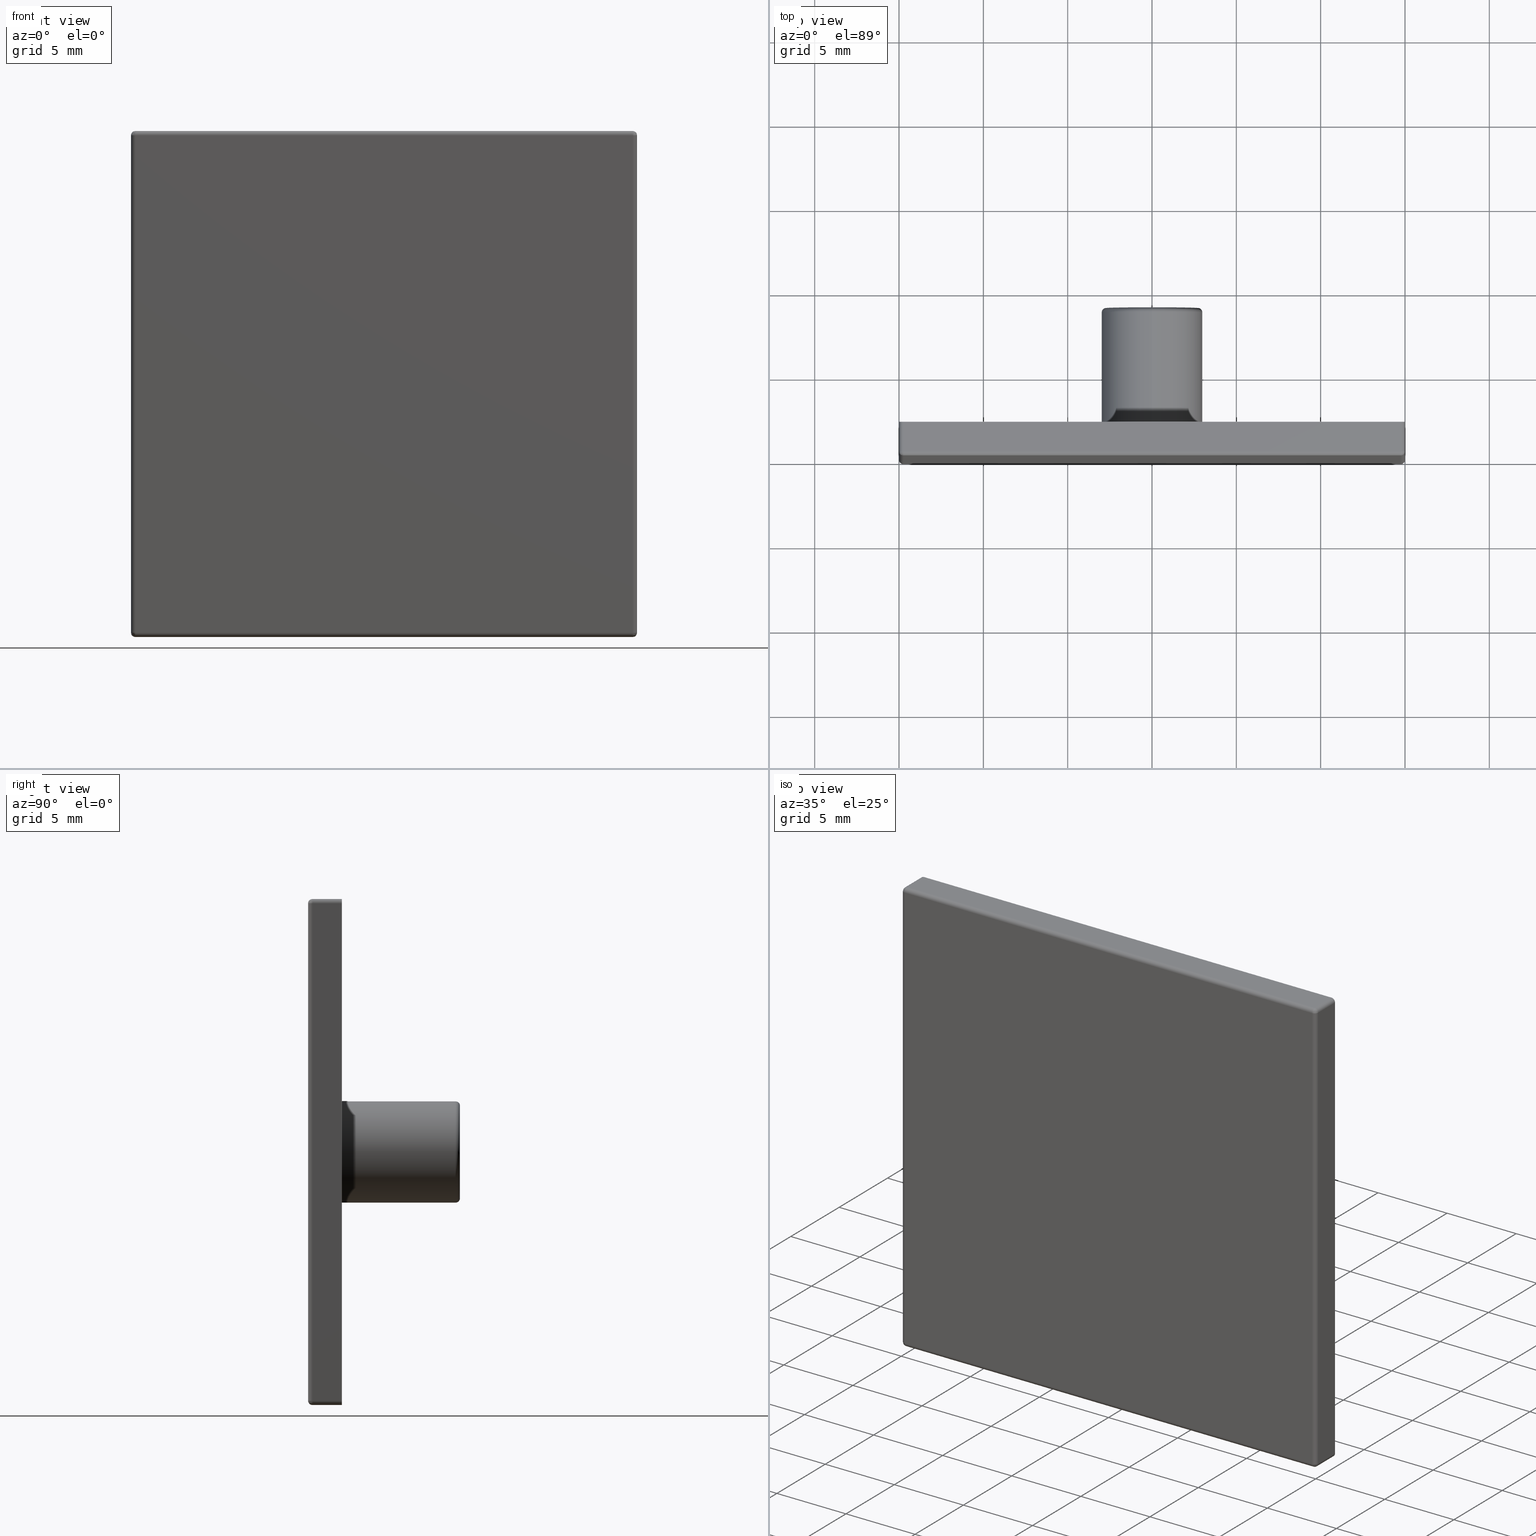
[diagram: canonical four-view strip — front | top / right | iso, engineering-drawing reading convention]
A machine part, canonical four-view strip (front | top / right | iso — engineering-drawing reading convention). The complete STEP part file that produces these views, byte-faithful:
ISO-10303-21;
HEADER;
FILE_DESCRIPTION (( 'STEP AP203' ),
    '1' );
FILE_NAME ('B40-30.STEP',
    '2018-04-03T11:04:24',
    ( 'User2' ),
    ( '' ),
    'SwSTEP 2.0',
    'SolidWorks 2007',
    '' );
FILE_SCHEMA (( 'CONFIG_CONTROL_DESIGN' ));
ENDSEC;

DATA;
#1 = DIRECTION ( 'NONE',  ( -0.0000000000000000000, -0.0000000000000000000, -1.000000000000000000 ) ) ;
#2 = CARTESIAN_POINT ( 'NONE',  ( -14.75000000009617400, 0.0000000000000000000, 0.0000000000000000000 ) ) ;
#3 = DIRECTION ( 'NONE',  ( 0.0000000000000000000, -3.469446951953612200E-015, 1.000000000000000000 ) ) ;
#4 = DIRECTION ( 'NONE',  ( 0.0000000000000000000, -1.000000000000000000, -6.938893903907222100E-015 ) ) ;
#5 = CARTESIAN_POINT ( 'NONE',  ( -14.75000000000000200, 0.2500000000000000000, -14.75000000000000200 ) ) ;
#6 = CARTESIAN_POINT ( 'NONE',  ( 14.00000000000000000, 1.750000000000000000, -14.00000000000000000 ) ) ;
#7 = DIRECTION ( 'NONE',  ( -0.0000000000000000000, -1.000000000000000000, -0.0000000000000000000 ) ) ;
#8 = CARTESIAN_POINT ( 'NONE',  ( 14.00000000000000000, 1.500000000000000000, 0.0000000000000000000 ) ) ;
#9 = DIRECTION ( 'NONE',  ( -0.0000000000000000000, -0.0000000000000000000, -1.000000000000000000 ) ) ;
#10 = CARTESIAN_POINT ( 'NONE',  ( 14.00000000000000000, 1.750000000000000000, 14.00000000000000000 ) ) ;
#11 = DIRECTION ( 'NONE',  ( 0.0000000000000000000, 1.000000000000000000, 0.0000000000000000000 ) ) ;
#12 = CARTESIAN_POINT ( 'NONE',  ( -14.00000000000000000, 1.750000000000000000, -14.00000000000000000 ) ) ;
#13 = DIRECTION ( 'NONE',  ( -0.0000000000000000000, -1.000000000000000000, -0.0000000000000000000 ) ) ;
#14 = CARTESIAN_POINT ( 'NONE',  ( 0.0000000000000000000, 1.500000000000000000, -14.00000000000000000 ) ) ;
#15 = DIRECTION ( 'NONE',  ( -1.000000000000000000, -0.0000000000000000000, -0.0000000000000000000 ) ) ;
#16 = CARTESIAN_POINT ( 'NONE',  ( -14.00000000000000000, 1.750000000000000000, 14.00000000000000000 ) ) ;
#17 = DIRECTION ( 'NONE',  ( -0.0000000000000000000, -1.000000000000000000, -0.0000000000000000000 ) ) ;
#18 = CARTESIAN_POINT ( 'NONE',  ( -14.00000000000000000, 1.500000000000000000, 0.0000000000000000000 ) ) ;
#19 = DIRECTION ( 'NONE',  ( 0.0000000000000000000, 0.0000000000000000000, 1.000000000000000000 ) ) ;
#20 = CARTESIAN_POINT ( 'NONE',  ( 0.0000000000000000000, 1.500000000000000000, 14.00000000000000000 ) ) ;
#21 = DIRECTION ( 'NONE',  ( 1.000000000000000000, 0.0000000000000000000, 0.0000000000000000000 ) ) ;
#22 = CARTESIAN_POINT ( 'NONE',  ( 0.0000000000000000000, 1.499999999999999600, 0.0000000000000000000 ) ) ;
#23 = DIRECTION ( 'NONE',  ( 0.0000000000000000000, -1.000000000000000000, 0.0000000000000000000 ) ) ;
#24 = DIRECTION ( 'NONE',  ( 0.0000000000000000000, 0.0000000000000000000, -1.000000000000000000 ) ) ;
#25 = CARTESIAN_POINT ( 'NONE',  ( 0.0000000000000000000, 9.000000000000001800, 0.0000000000000000000 ) ) ;
#26 = DIRECTION ( 'NONE',  ( 0.0000000000000000000, -1.000000000000000000, -0.0000000000000000000 ) ) ;
#27 = DIRECTION ( 'NONE',  ( 0.0000000000000000000, 0.0000000000000000000, 1.000000000000000000 ) ) ;
#28 = CARTESIAN_POINT ( 'NONE',  ( 0.0000000000000000000, 8.750000000000000000, 0.0000000000000000000 ) ) ;
#29 = DIRECTION ( 'NONE',  ( -0.0000000000000000000, 1.000000000000000000, 0.0000000000000000000 ) ) ;
#30 = DIRECTION ( 'NONE',  ( 0.0000000000000000000, 0.0000000000000000000, 1.000000000000000000 ) ) ;
#31 = CARTESIAN_POINT ( 'NONE',  ( 0.0000000000000000000, 9.000000000000001800, 0.0000000000000000000 ) ) ;
#32 = DIRECTION ( 'NONE',  ( 0.0000000000000000000, -1.000000000000000000, -0.0000000000000000000 ) ) ;
#33 = DIRECTION ( 'NONE',  ( 0.0000000000000000000, 0.0000000000000000000, 1.000000000000000000 ) ) ;
#34 = CARTESIAN_POINT ( 'NONE',  ( 2.908536147974963200E-016, 8.750000000000000000, 2.374999999999999600 ) ) ;
#35 = DIRECTION ( 'NONE',  ( 0.0000000000000000000, -1.000000000000000000, 0.0000000000000000000 ) ) ;
#36 = CARTESIAN_POINT ( 'NONE',  ( 14.75000000000000200, 0.2500000000000000000, 14.75000000000000000 ) ) ;
#37 = DIRECTION ( 'NONE',  ( -0.0000000000000000000, -0.0000000000000000000, 1.000000000000000000 ) ) ;
#38 = DIRECTION ( 'NONE',  ( -1.000000000000000000, -8.673617379884027600E-016, 6.938893903907222100E-015 ) ) ;
#39 = CARTESIAN_POINT ( 'NONE',  ( -14.00000000249999800, 2.000000000000000000, 14.00000000249999800 ) ) ;
#40 = CARTESIAN_POINT ( 'NONE',  ( 15.00000000000000000, 0.2499999999999999400, -14.74999999998718000 ) ) ;
#41 = CARTESIAN_POINT ( 'NONE',  ( 0.0000000000000000000, 2.000000000000000000, -2.374999999999999600 ) ) ;
#42 = CARTESIAN_POINT ( 'NONE',  ( 14.75000000004808600, -1.084202172485504400E-016, 14.75000000004808600 ) ) ;
#43 = CARTESIAN_POINT ( 'NONE',  ( -14.00000000000000000, 1.500000000000000000, 14.00000000000000000 ) ) ;
#44 = CARTESIAN_POINT ( 'NONE',  ( -15.00000000000000000, 2.000000000000000000, -14.75000000000000200 ) ) ;
#45 = CARTESIAN_POINT ( 'NONE',  ( 14.74999999997436000, 0.2499999999999999400, 15.00000000000000000 ) ) ;
#46 = CARTESIAN_POINT ( 'NONE',  ( 3.673940397442059900E-016, 8.750000000000000000, 3.000000000000000000 ) ) ;
#47 = CARTESIAN_POINT ( 'NONE',  ( 14.00000000000000000, 1.500000000000000000, 14.00000000000000000 ) ) ;
#48 = CARTESIAN_POINT ( 'NONE',  ( 14.75000000000000000, 0.2499999999743620900, -15.00000000000000000 ) ) ;
#49 = CARTESIAN_POINT ( 'NONE',  ( 0.0000000000000000000, 1.499999999999999600, -3.000000000000000000 ) ) ;
#50 = CARTESIAN_POINT ( 'NONE',  ( 0.0000000000000000000, 9.000000000000001800, 2.750000000000462300 ) ) ;
#51 = CARTESIAN_POINT ( 'NONE',  ( -14.00000000000000000, 1.500000000000000000, -14.00000000000000000 ) ) ;
#52 = CARTESIAN_POINT ( 'NONE',  ( 0.0000000000000000000, 8.750000000000000000, -2.374999999999999600 ) ) ;
#53 = CARTESIAN_POINT ( 'NONE',  ( -15.00000000000000000, 0.2499999999743620900, -14.74999999996393500 ) ) ;
#54 = CARTESIAN_POINT ( 'NONE',  ( 14.75000000003606400, -1.084202172485504400E-016, -14.75000000004808800 ) ) ;
#55 = CARTESIAN_POINT ( 'NONE',  ( 14.75000000000000200, 2.000000000000000000, -15.00000000000000000 ) ) ;
#56 = CARTESIAN_POINT ( 'NONE',  ( -14.75000000004808600, -1.084202172485504400E-016, 14.75000000004808600 ) ) ;
#57 = CARTESIAN_POINT ( 'NONE',  ( -14.75000000000000000, 0.2499999999743620900, 15.00000000000000000 ) ) ;
#58 = CARTESIAN_POINT ( 'NONE',  ( 2.908536147974963200E-016, 8.750000000000000000, 2.374999999999999600 ) ) ;
#59 = CARTESIAN_POINT ( 'NONE',  ( 14.00000000249999800, 2.000000000000000000, 14.00000000249999800 ) ) ;
#60 = CARTESIAN_POINT ( 'NONE',  ( 3.214697848203899900E-016, 9.000000000000001800, -2.625000000361000100 ) ) ;
#61 = CARTESIAN_POINT ( 'NONE',  ( 3.520859547548923400E-016, 9.000000000000001800, -2.750000000000462300 ) ) ;
#62 = CARTESIAN_POINT ( 'NONE',  ( 15.00000000000000000, 2.000000000000000000, 14.75000000000000200 ) ) ;
#63 = CARTESIAN_POINT ( 'NONE',  ( 14.00000000000000000, 1.500000000000000000, -14.00000000000000000 ) ) ;
#64 = CARTESIAN_POINT ( 'NONE',  ( -14.00000000249999800, 2.000000000000000000, -14.00000000249999800 ) ) ;
#65 = CARTESIAN_POINT ( 'NONE',  ( 14.00000000249999800, 2.000000000000000000, -14.00000000249999800 ) ) ;
#66 = CARTESIAN_POINT ( 'NONE',  ( -14.75000000000000200, 2.000000000000000000, 15.00000000000000000 ) ) ;
#67 = CARTESIAN_POINT ( 'NONE',  ( 2.908536147974963200E-016, 2.000000000000000000, 2.374999999999999600 ) ) ;
#68 = CARTESIAN_POINT ( 'NONE',  ( 15.00000000000000000, 2.000000000000000000, -14.75000000000000200 ) ) ;
#69 = CARTESIAN_POINT ( 'NONE',  ( -15.00000000000000000, 2.000000000000000000, 14.75000000000000200 ) ) ;
#70 = CARTESIAN_POINT ( 'NONE',  ( 14.75000000000000200, 2.000000000000000000, 15.00000000000000000 ) ) ;
#71 = CARTESIAN_POINT ( 'NONE',  ( 0.0000000000000000000, 8.750000000000000000, -3.000000000000000000 ) ) ;
#72 = CARTESIAN_POINT ( 'NONE',  ( -14.75000000000000200, 2.000000000000000000, -15.00000000000000000 ) ) ;
#73 = CARTESIAN_POINT ( 'NONE',  ( 3.673940397442059900E-016, 1.499999999999999600, 3.000000000000000000 ) ) ;
#74 = CARTESIAN_POINT ( 'NONE',  ( -14.75000000001122300, 0.2499999999999999400, -15.00000000000000000 ) ) ;
#75 = CARTESIAN_POINT ( 'NONE',  ( 0.0000000000000000000, 9.000000000000001800, 2.625000000361000100 ) ) ;
#76 = CARTESIAN_POINT ( 'NONE',  ( 15.00000000000000000, 0.2499999999743620900, 14.75000000000000000 ) ) ;
#77 = CARTESIAN_POINT ( 'NONE',  ( -15.00000000000000000, 0.2499999999999999400, 14.75000000002404300 ) ) ;
#78 = CARTESIAN_POINT ( 'NONE',  ( -14.75000000004808600, -1.084202172485504400E-016, -14.75000000004808600 ) ) ;
#79 = CARTESIAN_POINT ( 'NONE',  ( 14.75000000000000000, 0.2500000000000000000, 14.75000000000000200 ) ) ;
#80 = DIRECTION ( 'NONE',  ( 1.000000000000000000, 0.0000000000000000000, 0.0000000000000000000 ) ) ;
#81 = DIRECTION ( 'NONE',  ( 6.938893903907222100E-015, 0.0000000000000000000, -1.000000000000000000 ) ) ;
#82 = CARTESIAN_POINT ( 'NONE',  ( 14.75000000000000200, 0.2500000000000000000, 14.75000000000000200 ) ) ;
#83 = DIRECTION ( 'NONE',  ( 0.0000000000000000000, -1.000000000000000000, 0.0000000000000000000 ) ) ;
#84 = DIRECTION ( 'NONE',  ( 0.0000000000000000000, 0.0000000000000000000, -1.000000000000000000 ) ) ;
#85 = CARTESIAN_POINT ( 'NONE',  ( 3.214697847761802100E-016, 8.750000000000000000, -2.625000000000000000 ) ) ;
#86 = DIRECTION ( 'NONE',  ( 1.000000000000000000, 0.0000000000000000000, 1.224646799147353200E-016 ) ) ;
#87 = DIRECTION ( 'NONE',  ( 1.224646799147353000E-016, 0.0000000000000000000, -1.000000000000000000 ) ) ;
#88 = CARTESIAN_POINT ( 'NONE',  ( -14.75000000000000200, 0.2500000000000000000, 14.75000000000000200 ) ) ;
#89 = DIRECTION ( 'NONE',  ( -1.000000000000000000, -0.0000000000000000000, -0.0000000000000000000 ) ) ;
#90 = DIRECTION ( 'NONE',  ( 0.0000000000000000000, -8.673617379884027600E-016, -1.000000000000000000 ) ) ;
#91 = CARTESIAN_POINT ( 'NONE',  ( 0.0000000000000000000, 2.000000000000000000, 0.0000000000000000000 ) ) ;
#92 = DIRECTION ( 'NONE',  ( 0.0000000000000000000, -1.000000000000000000, 0.0000000000000000000 ) ) ;
#93 = DIRECTION ( 'NONE',  ( 0.0000000000000000000, 0.0000000000000000000, -1.000000000000000000 ) ) ;
#94 = CARTESIAN_POINT ( 'NONE',  ( 0.0000000000000000000, 8.750000000000000000, 0.0000000000000000000 ) ) ;
#95 = DIRECTION ( 'NONE',  ( 0.0000000000000000000, -1.000000000000000000, -0.0000000000000000000 ) ) ;
#96 = DIRECTION ( 'NONE',  ( 0.0000000000000000000, 0.0000000000000000000, -1.000000000000000000 ) ) ;
#97 = CARTESIAN_POINT ( 'NONE',  ( 0.0000000000000000000, 8.750000000000000000, 2.625000000000000000 ) ) ;
#98 = DIRECTION ( 'NONE',  ( -1.000000000000000000, -0.0000000000000000000, 0.0000000000000000000 ) ) ;
#99 = DIRECTION ( 'NONE',  ( 0.0000000000000000000, 0.0000000000000000000, 1.000000000000000000 ) ) ;
#100 = CARTESIAN_POINT ( 'NONE',  ( -14.75000000000000200, 0.2500000000000000000, 14.75000000000000000 ) ) ;
#101 = DIRECTION ( 'NONE',  ( 0.0000000000000000000, 0.0000000000000000000, 1.000000000000000000 ) ) ;
#102 = DIRECTION ( 'NONE',  ( 1.000000000000000000, 0.0000000000000000000, 6.938893903907222100E-015 ) ) ;
#103 = CARTESIAN_POINT ( 'NONE',  ( -14.75000000000000200, 0.2500000000000000000, 14.75000000000000200 ) ) ;
#104 = DIRECTION ( 'NONE',  ( 0.0000000000000000000, -1.000000000000000000, 0.0000000000000000000 ) ) ;
#105 = DIRECTION ( 'NONE',  ( 0.0000000000000000000, 0.0000000000000000000, -1.000000000000000000 ) ) ;
#106 = CARTESIAN_POINT ( 'NONE',  ( 0.0000000000000000000, 8.750000000000000000, 0.0000000000000000000 ) ) ;
#107 = DIRECTION ( 'NONE',  ( 0.0000000000000000000, -1.000000000000000000, -0.0000000000000000000 ) ) ;
#108 = DIRECTION ( 'NONE',  ( 0.0000000000000000000, 0.0000000000000000000, -1.000000000000000000 ) ) ;
#109 = CARTESIAN_POINT ( 'NONE',  ( 0.0000000000000000000, 8.750000000000000000, 0.0000000000000000000 ) ) ;
#110 = DIRECTION ( 'NONE',  ( -0.0000000000000000000, 1.000000000000000000, 0.0000000000000000000 ) ) ;
#111 = DIRECTION ( 'NONE',  ( 0.0000000000000000000, 0.0000000000000000000, 1.000000000000000000 ) ) ;
#112 = CARTESIAN_POINT ( 'NONE',  ( 3.367778697655221000E-016, 8.750000000000000000, -2.750000000000000000 ) ) ;
#113 = DIRECTION ( 'NONE',  ( 1.000000000000000000, 0.0000000000000000000, 1.224646799147353200E-016 ) ) ;
#114 = DIRECTION ( 'NONE',  ( 1.224646799147353500E-016, 0.0000000000000000000, -1.000000000000000000 ) ) ;
#115 = CARTESIAN_POINT ( 'NONE',  ( 0.0000000000000000000, 9.000000000000001800, 0.0000000000000000000 ) ) ;
#116 = DIRECTION ( 'NONE',  ( 0.0000000000000000000, -1.000000000000000000, -0.0000000000000000000 ) ) ;
#117 = DIRECTION ( 'NONE',  ( 0.0000000000000000000, 0.0000000000000000000, 1.000000000000000000 ) ) ;
#118 = CARTESIAN_POINT ( 'NONE',  ( 0.0000000000000000000, 8.750000000000000000, 2.750000000000000000 ) ) ;
#119 = DIRECTION ( 'NONE',  ( -1.000000000000000000, -0.0000000000000000000, 0.0000000000000000000 ) ) ;
#120 = DIRECTION ( 'NONE',  ( 0.0000000000000000000, 0.0000000000000000000, 1.000000000000000000 ) ) ;
#121 = CARTESIAN_POINT ( 'NONE',  ( 3.673940397442059900E-016, 8.750000000000000000, 3.000000000000000000 ) ) ;
#122 = DIRECTION ( 'NONE',  ( 0.0000000000000000000, -1.000000000000000000, 0.0000000000000000000 ) ) ;
#123 = CARTESIAN_POINT ( 'NONE',  ( 0.0000000000000000000, 1.499999999999999600, 0.0000000000000000000 ) ) ;
#124 = DIRECTION ( 'NONE',  ( 0.0000000000000000000, -1.000000000000000000, 0.0000000000000000000 ) ) ;
#125 = DIRECTION ( 'NONE',  ( 0.0000000000000000000, 0.0000000000000000000, -1.000000000000000000 ) ) ;
#126 = CARTESIAN_POINT ( 'NONE',  ( 0.0000000000000000000, 8.750000000000000000, -3.000000000000000000 ) ) ;
#127 = DIRECTION ( 'NONE',  ( 0.0000000000000000000, -1.000000000000000000, 0.0000000000000000000 ) ) ;
#128 = CARTESIAN_POINT ( 'NONE',  ( 0.0000000000000000000, 9.000000000000001800, 0.0000000000000000000 ) ) ;
#129 = DIRECTION ( 'NONE',  ( 0.0000000000000000000, -1.000000000000000000, -0.0000000000000000000 ) ) ;
#130 = DIRECTION ( 'NONE',  ( 0.0000000000000000000, 0.0000000000000000000, 1.000000000000000000 ) ) ;
#131 = CARTESIAN_POINT ( 'NONE',  ( 0.0000000000000000000, 8.750000000000000000, -2.374999999999999600 ) ) ;
#132 = DIRECTION ( 'NONE',  ( 0.0000000000000000000, -1.000000000000000000, 0.0000000000000000000 ) ) ;
#133 =( LENGTH_UNIT ( ) NAMED_UNIT ( * ) SI_UNIT ( .MILLI., .METRE. ) );
#134 =( NAMED_UNIT ( * ) PLANE_ANGLE_UNIT ( ) SI_UNIT ( $, .RADIAN. ) );
#135 =( NAMED_UNIT ( * ) SI_UNIT ( $, .STERADIAN. ) SOLID_ANGLE_UNIT ( ) );
#136 = CARTESIAN_POINT ( 'NONE',  ( 0.0000000000000000000, 0.0000000000000000000, 0.0000000000000000000 ) ) ;
#137 = DIRECTION ( 'NONE',  ( 0.0000000000000000000, 0.0000000000000000000, 1.000000000000000000 ) ) ;
#138 = DIRECTION ( 'NONE',  ( 1.000000000000000000, 0.0000000000000000000, 0.0000000000000000000 ) ) ;
#139 = APPLICATION_CONTEXT ( 'configuration controlled 3d designs of mechanical parts and assemblies' ) ;
#140 = APPLICATION_PROTOCOL_DEFINITION ( 'international standard', 'config_control_design', 1994, #139 ) ;
#141 = MECHANICAL_CONTEXT ( 'NONE', #139, 'mechanical' ) ;
#142 = PERSON_AND_ORGANIZATION_ROLE ( 'design_owner' ) ;
#143 = APPLICATION_CONTEXT ( 'configuration controlled 3d designs of mechanical parts and assemblies' ) ;
#144 = APPLICATION_PROTOCOL_DEFINITION ( 'international standard', 'config_control_design', 1994, #143 ) ;
#145 = APPROVAL_STATUS ( 'not_yet_approved' ) ;
#146 = APPROVAL_ROLE ( '' ) ;
#147 = PERSON_AND_ORGANIZATION_ROLE ( 'creator' ) ;
#148 = DATE_TIME_ROLE ( 'creation_date' ) ;
#149 = APPROVAL_STATUS ( 'not_yet_approved' ) ;
#150 = APPROVAL_ROLE ( '' ) ;
#151 = PERSON_AND_ORGANIZATION_ROLE ( 'creator' ) ;
#152 = PERSON_AND_ORGANIZATION_ROLE ( 'design_supplier' ) ;
#153 = SECURITY_CLASSIFICATION_LEVEL ( 'unclassified' ) ;
#154 = PERSON_AND_ORGANIZATION_ROLE ( 'classification_officer' ) ;
#155 = DATE_TIME_ROLE ( 'classification_date' ) ;
#156 = APPROVAL_STATUS ( 'not_yet_approved' ) ;
#157 = APPROVAL_ROLE ( '' ) ;
#158 = UNCERTAINTY_MEASURE_WITH_UNIT (LENGTH_MEASURE( 1.000000000000000100E-005 ), #133, 'distance_accuracy_value', 'NONE');
#159 = ADVANCED_FACE ( 'NONE', ( #619 ), #458, .F. ) ;
#160 = ADVANCED_FACE ( 'NONE', ( #620 ), #621, .F. ) ;
#161 = ADVANCED_FACE ( 'NONE', ( #622, #623 ), #488, .T. ) ;
#162 = ADVANCED_FACE ( 'NONE', ( #625 ), #626, .T. ) ;
#163 = ADVANCED_FACE ( 'NONE', ( #627 ), #628, .T. ) ;
#164 = ADVANCED_FACE ( 'NONE', ( #629, #630 ), #446, .T. ) ;
#165 = ADVANCED_FACE ( 'NONE', ( #631 ), #632, .T. ) ;
#166 = MANIFOLD_SOLID_BREP ( 'NONE', #248 ) ;
#167 = ADVANCED_FACE ( 'NONE', ( #633 ), #929, .F. ) ;
#168 = ADVANCED_FACE ( 'NONE', ( #634 ), #930, .F. ) ;
#169 = ADVANCED_FACE ( 'NONE', ( #635 ), #330, .F. ) ;
#170 = ADVANCED_FACE ( 'NONE', ( #636 ), #201, .F. ) ;
#171 = ADVANCED_FACE ( 'NONE', ( #637 ), #638, .T. ) ;
#172 = EDGE_CURVE ( 'NONE', #484, #521, #639, .T. ) ;
#173 = EDGE_CURVE ( 'NONE', #521, #481, #641, .T. ) ;
#174 = EDGE_CURVE ( 'NONE', #512, #521, #643, .T. ) ;
#175 = EDGE_CURVE ( 'NONE', #481, #512, #648, .T. ) ;
#176 = EDGE_CURVE ( 'NONE', #521, #482, #645, .T. ) ;
#177 = EDGE_CURVE ( 'NONE', #482, #453, #654, .T. ) ;
#178 = EDGE_CURVE ( 'NONE', #445, #482, #658, .T. ) ;
#179 = EDGE_CURVE ( 'NONE', #453, #484, #657, .T. ) ;
#180 = ADVANCED_FACE ( 'NONE', ( #661 ), #662, .T. ) ;
#181 = ADVANCED_FACE ( 'NONE', ( #663 ), #664, .T. ) ;
#182 = ADVANCED_FACE ( 'NONE', ( #665 ), #666, .T. ) ;
#183 = ADVANCED_FACE ( 'NONE', ( #667 ), #668, .T. ) ;
#184 = ADVANCED_FACE ( 'NONE', ( #670 ), #671, .T. ) ;
#185 = ADVANCED_FACE ( 'NONE', ( #672 ), #673, .T. ) ;
#186 = ADVANCED_FACE ( 'NONE', ( #674 ), #675, .T. ) ;
#187 = ADVANCED_FACE ( 'NONE', ( #676 ), #801, .F. ) ;
#188 = ADVANCED_FACE ( 'NONE', ( #678 ), #805, .F. ) ;
#189 = ADVANCED_FACE ( 'NONE', ( #679 ), #809, .F. ) ;
#190 = ADVANCED_FACE ( 'NONE', ( #680 ), #813, .F. ) ;
#191 = ADVANCED_FACE ( 'NONE', ( #682, #684 ), #817, .T. ) ;
#192 = ADVANCED_FACE ( 'NONE', ( #685 ), #821, .T. ) ;
#193 = ADVANCED_FACE ( 'NONE', ( #686 ), #825, .F. ) ;
#194 = ADVANCED_FACE ( 'NONE', ( #688 ), #829, .F. ) ;
#195 = ADVANCED_FACE ( 'NONE', ( #690 ), #833, .F. ) ;
#196 = ADVANCED_FACE ( 'NONE', ( #691 ), #692, .T. ) ;
#197 = ADVANCED_FACE ( 'NONE', ( #693 ), #694, .F. ) ;
#198 = ADVANCED_FACE ( 'NONE', ( #696 ), #697, .T. ) ;
#199 = ADVANCED_FACE ( 'NONE', ( #699 ), #770, .F. ) ;
#200 = ADVANCED_FACE ( 'NONE', ( #701 ), #703, .T. ) ;
#201 =( BOUNDED_SURFACE ( )  B_SPLINE_SURFACE ( 3, 3, ( 
 ( #337, #336, #338, #340 ),
 ( #341, #342, #344, #345 ),
 ( #346, #348, #349, #332 ),
 ( #335, #339, #347, #343 ) ),
 .UNSPECIFIED., .F., .F., .T. ) 
 B_SPLINE_SURFACE_WITH_KNOTS ( ( 4, 4 ),
 ( 4, 4 ),
 ( 0.0000000000000000000, 1.000000000000000000 ),
 ( 0.0000000000000000000, 1.000000000000000000 ),
 .UNSPECIFIED. ) 
 GEOMETRIC_REPRESENTATION_ITEM ( )  RATIONAL_B_SPLINE_SURFACE ( (
 ( 1.000000000000000000, 0.8047378540790245400, 0.8047378540790245400, 1.000000000000000000),
 ( 0.8047378540760210500, 0.6476030137852963900, 0.6476030137852963900, 0.8047378540760210500),
 ( 0.8047378540760210500, 0.6476030137852963900, 0.6476030137852963900, 0.8047378540760210500),
 ( 1.000000000000000000, 0.8047378540790245400, 0.8047378540790245400, 1.000000000000000000) ) ) 
 REPRESENTATION_ITEM ( '' )  SURFACE ( )  );
#202 = ADVANCED_BREP_SHAPE_REPRESENTATION ( 'B40-30', ( #166, #362 ), #985 ) ;
#203 = ORIENTED_EDGE ( 'NONE', *, *, #956, .F. ) ;
#204 = ORIENTED_EDGE ( 'NONE', *, *, #172, .T. ) ;
#205 = ORIENTED_EDGE ( 'NONE', *, *, #413, .F. ) ;
#206 = ORIENTED_EDGE ( 'NONE', *, *, #429, .T. ) ;
#207 = ORIENTED_EDGE ( 'NONE', *, *, #432, .T. ) ;
#208 = ORIENTED_EDGE ( 'NONE', *, *, #939, .T. ) ;
#209 = ORIENTED_EDGE ( 'NONE', *, *, #175, .T. ) ;
#210 = ORIENTED_EDGE ( 'NONE', *, *, #173, .T. ) ;
#211 = ORIENTED_EDGE ( 'NONE', *, *, #933, .F. ) ;
#212 = ORIENTED_EDGE ( 'NONE', *, *, #437, .F. ) ;
#213 = ORIENTED_EDGE ( 'NONE', *, *, #414, .T. ) ;
#214 = ORIENTED_EDGE ( 'NONE', *, *, #174, .T. ) ;
#215 = ORIENTED_EDGE ( 'NONE', *, *, #175, .F. ) ;
#216 = ORIENTED_EDGE ( 'NONE', *, *, #411, .T. ) ;
#217 = ORIENTED_EDGE ( 'NONE', *, *, #410, .F. ) ;
#218 = ORIENTED_EDGE ( 'NONE', *, *, #941, .T. ) ;
#219 = ORIENTED_EDGE ( 'NONE', *, *, #412, .T. ) ;
#220 = ORIENTED_EDGE ( 'NONE', *, *, #438, .F. ) ;
#221 = ORIENTED_EDGE ( 'NONE', *, *, #952, .F. ) ;
#222 = ORIENTED_EDGE ( 'NONE', *, *, #945, .T. ) ;
#223 = ORIENTED_EDGE ( 'NONE', *, *, #954, .T. ) ;
#224 = ORIENTED_EDGE ( 'NONE', *, *, #441, .T. ) ;
#225 = ORIENTED_EDGE ( 'NONE', *, *, #436, .F. ) ;
#226 = ORIENTED_EDGE ( 'NONE', *, *, #437, .T. ) ;
#227 = ORIENTED_EDGE ( 'NONE', *, *, #955, .T. ) ;
#228 = ORIENTED_EDGE ( 'NONE', *, *, #439, .F. ) ;
#229 = ORIENTED_EDGE ( 'NONE', *, *, #949, .F. ) ;
#230 = ORIENTED_EDGE ( 'NONE', *, *, #948, .F. ) ;
#231 = ORIENTED_EDGE ( 'NONE', *, *, #438, .T. ) ;
#232 = ORIENTED_EDGE ( 'NONE', *, *, #951, .T. ) ;
#233 = ORIENTED_EDGE ( 'NONE', *, *, #439, .T. ) ;
#234 = ORIENTED_EDGE ( 'NONE', *, *, #931, .T. ) ;
#235 = ORIENTED_EDGE ( 'NONE', *, *, #935, .F. ) ;
#236 = ORIENTED_EDGE ( 'NONE', *, *, #404, .T. ) ;
#237 = ORIENTED_EDGE ( 'NONE', *, *, #173, .F. ) ;
#238 = ORIENTED_EDGE ( 'NONE', *, *, #403, .T. ) ;
#239 = ORIENTED_EDGE ( 'NONE', *, *, #941, .F. ) ;
#240 = ORIENTED_EDGE ( 'NONE', *, *, #172, .F. ) ;
#241 = ORIENTED_EDGE ( 'NONE', *, *, #401, .T. ) ;
#242 = ORIENTED_EDGE ( 'NONE', *, *, #932, .T. ) ;
#243 = ORIENTED_EDGE ( 'NONE', *, *, #178, .T. ) ;
#244 = ORIENTED_EDGE ( 'NONE', *, *, #402, .T. ) ;
#245 = ORIENTED_EDGE ( 'NONE', *, *, #179, .T. ) ;
#246 = ORIENTED_EDGE ( 'NONE', *, *, #935, .T. ) ;
#247 = ORIENTED_EDGE ( 'NONE', *, *, #177, .T. ) ;
#248 = CLOSED_SHELL ( 'NONE', ( #196, #198, #200, #197, #199, #167, #168, #169, #170, #171, #180, #181, #182, #183, #184, #185, #186, #187, #188, #189, #190, #191, #192, #193, #194, #195, #159, #160, #161, #162, #163, #164, #165 ) ) ;
#249 = ORIENTED_EDGE ( 'NONE', *, *, #409, .T. ) ;
#250 = ORIENTED_EDGE ( 'NONE', *, *, #932, .F. ) ;
#251 = ORIENTED_EDGE ( 'NONE', *, *, #936, .T. ) ;
#252 = ORIENTED_EDGE ( 'NONE', *, *, #178, .F. ) ;
#253 = ORIENTED_EDGE ( 'NONE', *, *, #407, .T. ) ;
#254 = ORIENTED_EDGE ( 'NONE', *, *, #406, .F. ) ;
#255 = ORIENTED_EDGE ( 'NONE', *, *, #942, .T. ) ;
#256 = ORIENTED_EDGE ( 'NONE', *, *, #405, .T. ) ;
#257 = ORIENTED_EDGE ( 'NONE', *, *, #942, .F. ) ;
#258 = ORIENTED_EDGE ( 'NONE', *, *, #931, .F. ) ;
#259 = ORIENTED_EDGE ( 'NONE', *, *, #179, .F. ) ;
#260 = EDGE_LOOP ( 'NONE', ( #576, #575, #573, #574 ) ) ;
#261 = EDGE_LOOP ( 'NONE', ( #215, #219, #205, #213 ) ) ;
#262 = EDGE_LOOP ( 'NONE', ( #583, #581, #582, #252 ) ) ;
#263 = EDGE_LOOP ( 'NONE', ( #242, #234, #224 ) ) ;
#264 = EDGE_LOOP ( 'NONE', ( #240, #239, #238, #237 ) ) ;
#265 = EDGE_LOOP ( 'NONE', ( #204, #304, #247, #245 ) ) ;
#266 = EDGE_LOOP ( 'NONE', ( #244, #243, #241 ) ) ;
#267 = EDGE_LOOP ( 'NONE', ( #303, #300, #251, #203 ) ) ;
#268 = EDGE_LOOP ( 'NONE', ( #250, #249, #217, #216 ) ) ;
#269 = EDGE_LOOP ( 'NONE', ( #298, #299, #301, #302 ) ) ;
#270 = EDGE_LOOP ( 'NONE', ( #314, #315, #316, #317 ) ) ;
#271 = EDGE_LOOP ( 'NONE', ( #305, #306, #307, #308 ) ) ;
#272 = EDGE_LOOP ( 'NONE', ( #257, #256, #254, #253 ) ) ;
#273 = EDGE_LOOP ( 'NONE', ( #228, #229 ) ) ;
#274 = EDGE_LOOP ( 'NONE', ( #255, #218, #246 ) ) ;
#275 = EDGE_LOOP ( 'NONE', ( #323, #325, #328, #329 ) ) ;
#276 = EDGE_LOOP ( 'NONE', ( #608, #609, #610, #611 ) ) ;
#277 = EDGE_LOOP ( 'NONE', ( #612, #613 ) ) ;
#278 = EDGE_LOOP ( 'NONE', ( #600, #601, #602, #603 ) ) ;
#279 = EDGE_LOOP ( 'NONE', ( #236, #235, #259, #258 ) ) ;
#280 = EDGE_LOOP ( 'NONE', ( #571, #572, #569, #570 ) ) ;
#281 = EDGE_LOOP ( 'NONE', ( #211, #212, #208, #222 ) ) ;
#282 = EDGE_LOOP ( 'NONE', ( #615, #617, #206, #207 ) ) ;
#283 = ORIENTED_EDGE ( 'NONE', *, *, #423, .T. ) ;
#284 = ORIENTED_EDGE ( 'NONE', *, *, #424, .T. ) ;
#285 = EDGE_LOOP ( 'NONE', ( #226, #227 ) ) ;
#286 = EDGE_LOOP ( 'NONE', ( #221, #220, #223, #225 ) ) ;
#287 = EDGE_LOOP ( 'NONE', ( #230, #231, #232, #233 ) ) ;
#288 = EDGE_LOOP ( 'NONE', ( #577, #578, #579, #580 ) ) ;
#289 = EDGE_LOOP ( 'NONE', ( #604, #605, #606, #607 ) ) ;
#290 = EDGE_LOOP ( 'NONE', ( #592, #593, #594, #595 ) ) ;
#291 = EDGE_LOOP ( 'NONE', ( #596, #597, #598, #599 ) ) ;
#292 = EDGE_LOOP ( 'NONE', ( #590, #591 ) ) ;
#293 = EDGE_LOOP ( 'NONE', ( #324, #318, #311, #584, #585, #586, #588, #589 ) ) ;
#294 = EDGE_LOOP ( 'NONE', ( #309, #310, #312, #313 ) ) ;
#295 = EDGE_LOOP ( 'NONE', ( #283, #284, #327, #326 ) ) ;
#296 = EDGE_LOOP ( 'NONE', ( #214, #210, #209 ) ) ;
#297 = EDGE_LOOP ( 'NONE', ( #319, #320, #321, #322 ) ) ;
#298 = ORIENTED_EDGE ( 'NONE', *, *, #176, .F. ) ;
#299 = ORIENTED_EDGE ( 'NONE', *, *, #174, .F. ) ;
#300 = ORIENTED_EDGE ( 'NONE', *, *, #440, .T. ) ;
#301 = ORIENTED_EDGE ( 'NONE', *, *, #415, .T. ) ;
#302 = ORIENTED_EDGE ( 'NONE', *, *, #401, .F. ) ;
#303 = ORIENTED_EDGE ( 'NONE', *, *, #945, .F. ) ;
#304 = ORIENTED_EDGE ( 'NONE', *, *, #176, .T. ) ;
#305 = ORIENTED_EDGE ( 'NONE', *, *, #402, .F. ) ;
#306 = ORIENTED_EDGE ( 'NONE', *, *, #416, .T. ) ;
#307 = ORIENTED_EDGE ( 'NONE', *, *, #417, .F. ) ;
#308 = ORIENTED_EDGE ( 'NONE', *, *, #418, .T. ) ;
#309 = ORIENTED_EDGE ( 'NONE', *, *, #403, .F. ) ;
#310 = ORIENTED_EDGE ( 'NONE', *, *, #407, .F. ) ;
#311 = ORIENTED_EDGE ( 'NONE', *, *, #419, .T. ) ;
#312 = ORIENTED_EDGE ( 'NONE', *, *, #419, .F. ) ;
#313 = ORIENTED_EDGE ( 'NONE', *, *, #412, .F. ) ;
#314 = ORIENTED_EDGE ( 'NONE', *, *, #404, .F. ) ;
#315 = ORIENTED_EDGE ( 'NONE', *, *, #411, .F. ) ;
#316 = ORIENTED_EDGE ( 'NONE', *, *, #420, .F. ) ;
#317 = ORIENTED_EDGE ( 'NONE', *, *, #405, .F. ) ;
#318 = ORIENTED_EDGE ( 'NONE', *, *, #413, .T. ) ;
#319 = ORIENTED_EDGE ( 'NONE', *, *, #408, .F. ) ;
#320 = ORIENTED_EDGE ( 'NONE', *, *, #418, .F. ) ;
#321 = ORIENTED_EDGE ( 'NONE', *, *, #421, .F. ) ;
#322 = ORIENTED_EDGE ( 'NONE', *, *, #409, .F. ) ;
#323 = ORIENTED_EDGE ( 'NONE', *, *, #415, .F. ) ;
#324 = ORIENTED_EDGE ( 'NONE', *, *, #422, .T. ) ;
#325 = ORIENTED_EDGE ( 'NONE', *, *, #414, .F. ) ;
#326 = ORIENTED_EDGE ( 'NONE', *, *, #426, .T. ) ;
#327 = ORIENTED_EDGE ( 'NONE', *, *, #425, .T. ) ;
#328 = ORIENTED_EDGE ( 'NONE', *, *, #422, .F. ) ;
#329 = ORIENTED_EDGE ( 'NONE', *, *, #416, .F. ) ;
#330 = PLANE ( 'NONE',  #546 ) ;
#331 = CARTESIAN_POINT ( 'NONE',  ( -14.75000000000000200, 0.0000000000000000000, -14.75000000000000200 ) ) ;
#332 = CARTESIAN_POINT ( 'NONE',  ( 15.00000000003004900, 0.2500000000000019400, -14.89644660937926600 ) ) ;
#333 = DIRECTION ( 'NONE',  ( 0.0000000000000000000, 1.000000000000000000, 0.0000000000000000000 ) ) ;
#334 = DIRECTION ( 'NONE',  ( 0.0000000000000000000, 0.0000000000000000000, 1.000000000000000000 ) ) ;
#335 = CARTESIAN_POINT ( 'NONE',  ( 14.74999999995191200, -6.722053469410127500E-015, -14.74999999994872400 ) ) ;
#336 = CARTESIAN_POINT ( 'NONE',  ( 14.75000000000000500, 0.2499999999999885400, -15.00000000000000500 ) ) ;
#337 = CARTESIAN_POINT ( 'NONE',  ( 14.75000000000000000, 0.2499999999999895900, -15.00000000000000500 ) ) ;
#338 = CARTESIAN_POINT ( 'NONE',  ( 14.75000000000001100, 0.2499999999999924200, -15.00000000000000500 ) ) ;
#339 = CARTESIAN_POINT ( 'NONE',  ( 14.89644660938097900, -2.817617812666435800E-011, -14.74999999994872400 ) ) ;
#340 = CARTESIAN_POINT ( 'NONE',  ( 14.75000000000001100, 0.2499999999999985000, -15.00000000000000500 ) ) ;
#341 = CARTESIAN_POINT ( 'NONE',  ( 14.74999999997183100, 0.1035533905694471500, -15.00000000000000000 ) ) ;
#342 = CARTESIAN_POINT ( 'NONE',  ( 14.83578643762577800, 0.1035533905529454300, -15.00000000000000200 ) ) ;
#343 = CARTESIAN_POINT ( 'NONE',  ( 15.00000000000000900, 0.2500000000000019400, -14.74999999994872400 ) ) ;
#344 = CARTESIAN_POINT ( 'NONE',  ( 14.89644660943055100, 0.1642135623460525800, -15.00000000000000200 ) ) ;
#345 = CARTESIAN_POINT ( 'NONE',  ( 14.89644660943055500, 0.2500000000000002200, -15.00000000000000000 ) ) ;
#346 = CARTESIAN_POINT ( 'NONE',  ( 14.74999999995191200, -3.004594386228315200E-011, -14.89644660937926600 ) ) ;
#347 = CARTESIAN_POINT ( 'NONE',  ( 15.00000000000001100, 0.1035533905709349300, -14.74999999994872400 ) ) ;
#348 = CARTESIAN_POINT ( 'NONE',  ( 14.89644660939857700, -5.821539993547809100E-011, -14.89644660937926400 ) ) ;
#349 = CARTESIAN_POINT ( 'NONE',  ( 15.00000000003005200, 0.1035533905533377900, -14.89644660937926400 ) ) ;
#350 = CARTESIAN_POINT ( 'NONE',  ( 0.0000000000000000000, 0.0000000000000000000, -14.75000000009617400 ) ) ;
#351 = DIRECTION ( 'NONE',  ( 0.0000000000000000000, 0.0000000000000000000, -1.000000000000000000 ) ) ;
#352 = DIRECTION ( 'NONE',  ( 0.0000000000000000000, -1.000000000000000000, 0.0000000000000000000 ) ) ;
#353 = DIRECTION ( 'NONE',  ( 0.0000000000000000000, 0.0000000000000000000, 1.000000000000000000 ) ) ;
#354 = CARTESIAN_POINT ( 'NONE',  ( -14.75000000000000200, 0.2500000000000000000, -14.75000000000000200 ) ) ;
#355 = AXIS2_PLACEMENT_3D ( 'NONE', #106, #107, #108 ) ;
#356 = AXIS2_PLACEMENT_3D ( 'NONE', #109, #110, #111 ) ;
#357 = AXIS2_PLACEMENT_3D ( 'NONE', #112, #113, #114 ) ;
#358 = AXIS2_PLACEMENT_3D ( 'NONE', #115, #116, #117 ) ;
#359 = AXIS2_PLACEMENT_3D ( 'NONE', #118, #119, #120 ) ;
#360 = AXIS2_PLACEMENT_3D ( 'NONE', #123, #124, #125 ) ;
#361 = AXIS2_PLACEMENT_3D ( 'NONE', #128, #129, #130 ) ;
#362 = AXIS2_PLACEMENT_3D ( 'NONE', #136, #137, #138 ) ;
#363 = CC_DESIGN_PERSON_AND_ORGANIZATION_ASSIGNMENT ( #982, #142, ( #773 ) ) ;
#364 = PRODUCT_DEFINITION ( 'UNKNOWN', '', #369, #771 ) ;
#365 = APPROVAL ( #145, 'UNSPECIFIED' ) ;
#366 = CC_DESIGN_APPROVAL ( #365, ( #364 ) ) ;
#367 = CC_DESIGN_PERSON_AND_ORGANIZATION_ASSIGNMENT ( #965, #147, ( #364 ) ) ;
#368 = CC_DESIGN_DATE_AND_TIME_ASSIGNMENT ( #993, #148, ( #364 ) ) ;
#369 = PRODUCT_DEFINITION_FORMATION_WITH_SPECIFIED_SOURCE ( 'ANY', '', #773, .NOT_KNOWN. ) ;
#370 = APPROVAL ( #149, 'UNSPECIFIED' ) ;
#371 = CC_DESIGN_APPROVAL ( #370, ( #369 ) ) ;
#372 = CC_DESIGN_PERSON_AND_ORGANIZATION_ASSIGNMENT ( #971, #151, ( #369 ) ) ;
#373 = CC_DESIGN_PERSON_AND_ORGANIZATION_ASSIGNMENT ( #969, #152, ( #369 ) ) ;
#374 = CC_DESIGN_PERSON_AND_ORGANIZATION_ASSIGNMENT ( #972, #154, ( #970 ) ) ;
#375 = CC_DESIGN_DATE_AND_TIME_ASSIGNMENT ( #976, #155, ( #970 ) ) ;
#376 = APPROVAL ( #156, 'UNSPECIFIED' ) ;
#377 = CC_DESIGN_APPROVAL ( #376, ( #970 ) ) ;
#378 = CC_DESIGN_SECURITY_CLASSIFICATION ( #970, ( #369 ) ) ;
#379 = PRODUCT_RELATED_PRODUCT_CATEGORY ( 'detail', '', ( #773 ) ) ;
#380 = CARTESIAN_POINT ( 'NONE',  ( -14.75000000000000200, 0.2500000000000000000, -14.75000000000000200 ) ) ;
#381 = DIRECTION ( 'NONE',  ( -1.000000000000000000, 0.0000000000000000000, 0.0000000000000000000 ) ) ;
#382 = CARTESIAN_POINT ( 'NONE',  ( -14.75000000000000200, 0.2500000000000000000, -14.75000000000000200 ) ) ;
#383 = DIRECTION ( 'NONE',  ( -0.0000000000000000000, -0.0000000000000000000, -1.000000000000000000 ) ) ;
#384 = DIRECTION ( 'NONE',  ( 1.000000000000000000, -8.673617379884027600E-016, 0.0000000000000000000 ) ) ;
#385 = CARTESIAN_POINT ( 'NONE',  ( -14.75000000000000200, 0.2500000000000002200, -15.00000000000000000 ) ) ;
#386 = CARTESIAN_POINT ( 'NONE',  ( -14.75000000000000200, 0.2500000000000002200, -15.00000000000000000 ) ) ;
#387 = CARTESIAN_POINT ( 'NONE',  ( -14.75000000000000200, 5.204170427930421300E-015, -14.74999999990382600 ) ) ;
#388 = CARTESIAN_POINT ( 'NONE',  ( -14.89644660940672500, 5.204170427930422100E-015, -14.74999999990382600 ) ) ;
#389 = CARTESIAN_POINT ( 'NONE',  ( -14.99999999999999600, 0.1035533905932759500, -14.74999999990382600 ) ) ;
#390 = CARTESIAN_POINT ( 'NONE',  ( -14.75000000000000200, 0.2500000000000000000, -15.00000000000000000 ) ) ;
#391 = CARTESIAN_POINT ( 'NONE',  ( -14.99999999999999600, 0.2499999999999991400, -14.74999999990382600 ) ) ;
#392 = CARTESIAN_POINT ( 'NONE',  ( -14.75000000000000000, -5.633341015887084000E-011, -14.89644660935521800 ) ) ;
#393 = CARTESIAN_POINT ( 'NONE',  ( -14.89644660943972500, -5.633341015887083400E-011, -14.89644660935522000 ) ) ;
#394 = CARTESIAN_POINT ( 'NONE',  ( -14.75000000000000200, 0.2500000000000000600, -15.00000000000000000 ) ) ;
#395 = CARTESIAN_POINT ( 'NONE',  ( -15.00000000005633400, 0.1035533905602746100, -14.89644660935522000 ) ) ;
#396 = CARTESIAN_POINT ( 'NONE',  ( -15.00000000005633400, 0.2500000000000001100, -14.89644660935521800 ) ) ;
#397 = CARTESIAN_POINT ( 'NONE',  ( -14.75000000000000000, 0.1035533905486083500, -14.99999999999999500 ) ) ;
#398 = CARTESIAN_POINT ( 'NONE',  ( -14.83578643765307000, 0.1035533905486083600, -14.99999999999999600 ) ) ;
#399 = CARTESIAN_POINT ( 'NONE',  ( -14.89644660945139300, 0.1642135623469311300, -14.99999999999999600 ) ) ;
#400 = CARTESIAN_POINT ( 'NONE',  ( -14.89644660945139300, 0.2500000000000005600, -14.99999999999999500 ) ) ;
#401 = EDGE_CURVE ( 'NONE', #482, #466, #705, .T. ) ;
#402 = EDGE_CURVE ( 'NONE', #466, #445, #707, .T. ) ;
#403 = EDGE_CURVE ( 'NONE', #520, #481, #706, .T. ) ;
#404 = EDGE_CURVE ( 'NONE', #456, #485, #710, .T. ) ;
#405 = EDGE_CURVE ( 'NONE', #485, #501, #714, .T. ) ;
#406 = EDGE_CURVE ( 'NONE', #504, #501, #720, .T. ) ;
#407 = EDGE_CURVE ( 'NONE', #504, #520, #718, .T. ) ;
#408 = EDGE_CURVE ( 'NONE', #445, #519, #723, .T. ) ;
#409 = EDGE_CURVE ( 'NONE', #519, #497, #727, .T. ) ;
#410 = EDGE_CURVE ( 'NONE', #505, #497, #732, .T. ) ;
#411 = EDGE_CURVE ( 'NONE', #505, #456, #731, .T. ) ;
#412 = EDGE_CURVE ( 'NONE', #481, #455, #736, .T. ) ;
#413 = EDGE_CURVE ( 'NONE', #508, #455, #740, .T. ) ;
#414 = EDGE_CURVE ( 'NONE', #508, #512, #739, .T. ) ;
#415 = EDGE_CURVE ( 'NONE', #512, #466, #742, .T. ) ;
#416 = EDGE_CURVE ( 'NONE', #466, #483, #746, .T. ) ;
#417 = EDGE_CURVE ( 'NONE', #503, #483, #749, .T. ) ;
#418 = EDGE_CURVE ( 'NONE', #503, #445, #748, .T. ) ;
#419 = EDGE_CURVE ( 'NONE', #455, #504, #751, .T. ) ;
#420 = EDGE_CURVE ( 'NONE', #501, #505, #755, .T. ) ;
#421 = EDGE_CURVE ( 'NONE', #497, #503, #757, .T. ) ;
#422 = EDGE_CURVE ( 'NONE', #483, #508, #759, .T. ) ;
#423 = EDGE_CURVE ( 'NONE', #444, #499, #761, .T. ) ;
#424 = EDGE_CURVE ( 'NONE', #499, #500, #763, .T. ) ;
#425 = EDGE_CURVE ( 'NONE', #500, #493, #765, .T. ) ;
#426 = EDGE_CURVE ( 'NONE', #493, #444, #767, .T. ) ;
#427 = EDGE_CURVE ( 'NONE', #451, #502, #646, .T. ) ;
#428 = EDGE_CURVE ( 'NONE', #500, #498, #769, .T. ) ;
#429 = EDGE_CURVE ( 'NONE', #463, #498, #652, .T. ) ;
#430 = EDGE_CURVE ( 'NONE', #463, #493, #726, .T. ) ;
#431 = EDGE_CURVE ( 'NONE', #499, #478, #730, .T. ) ;
#432 = EDGE_CURVE ( 'NONE', #498, #478, #735, .T. ) ;
#433 = EDGE_CURVE ( 'NONE', #444, #454, #743, .T. ) ;
#434 = EDGE_CURVE ( 'NONE', #478, #454, #752, .T. ) ;
#435 = EDGE_CURVE ( 'NONE', #454, #463, #616, .T. ) ;
#436 = EDGE_CURVE ( 'NONE', #509, #471, #624, .T. ) ;
#437 = EDGE_CURVE ( 'NONE', #513, #495, #642, .T. ) ;
#438 = EDGE_CURVE ( 'NONE', #506, #461, #644, .T. ) ;
#439 = EDGE_CURVE ( 'NONE', #472, #496, #650, .T. ) ;
#440 = EDGE_CURVE ( 'NONE', #491, #502, #647, .T. ) ;
#441 = EDGE_CURVE ( 'NONE', #453, #519, #659, .T. ) ;
#442 = CARTESIAN_POINT ( 'NONE',  ( 14.83578643762691000, 0.1035533905932653800, 15.00000000000000700 ) ) ;
#443 = DIRECTION ( 'NONE',  ( 0.0000000000000000000, 0.0000000000000000000, -1.000000000000000000 ) ) ;
#444 = VERTEX_POINT ( 'NONE', #39 ) ;
#445 = VERTEX_POINT ( 'NONE', #40 ) ;
#446 = PLANE ( 'NONE',  #947 ) ;
#447 = CARTESIAN_POINT ( 'NONE',  ( 14.75000000000000200, 0.2499999999999985000, 15.00000000000000700 ) ) ;
#448 = DIRECTION ( 'NONE',  ( 0.0000000000000000000, 0.0000000000000000000, 1.000000000000000000 ) ) ;
#449 = CARTESIAN_POINT ( 'NONE',  ( 15.00000000000001100, 0.2499999999999985300, 14.89644660940673200 ) ) ;
#450 = DIRECTION ( 'NONE',  ( 0.0000000000000000000, 1.000000000000000000, 0.0000000000000000000 ) ) ;
#451 = VERTEX_POINT ( 'NONE', #41 ) ;
#452 = CARTESIAN_POINT ( 'NONE',  ( -14.00000000000000000, 1.500000000000000000, 14.00000000000000000 ) ) ;
#453 = VERTEX_POINT ( 'NONE', #42 ) ;
#454 = VERTEX_POINT ( 'NONE', #43 ) ;
#455 = VERTEX_POINT ( 'NONE', #44 ) ;
#456 = VERTEX_POINT ( 'NONE', #45 ) ;
#457 = DIRECTION ( 'NONE',  ( 0.0000000000000000000, 1.000000000000000000, 0.0000000000000000000 ) ) ;
#458 = PLANE ( 'NONE',  #934 ) ;
#459 = DIRECTION ( 'NONE',  ( 0.0000000000000000000, -1.000000000000000000, 0.0000000000000000000 ) ) ;
#460 = CARTESIAN_POINT ( 'NONE',  ( 0.0000000000000000000, 8.750000000000000000, 0.0000000000000000000 ) ) ;
#461 = VERTEX_POINT ( 'NONE', #46 ) ;
#462 = DIRECTION ( 'NONE',  ( -0.0000000000000000000, 1.000000000000000000, 0.0000000000000000000 ) ) ;
#463 = VERTEX_POINT ( 'NONE', #47 ) ;
#464 = DIRECTION ( 'NONE',  ( 0.0000000000000000000, 0.0000000000000000000, 1.000000000000000000 ) ) ;
#465 = CARTESIAN_POINT ( 'NONE',  ( 14.89644660940673000, -1.382800429504048700E-014, 14.89644660940673200 ) ) ;
#466 = VERTEX_POINT ( 'NONE', #48 ) ;
#467 = CARTESIAN_POINT ( 'NONE',  ( 15.00000000000000700, 0.1035533905932640700, 14.89644660940673200 ) ) ;
#468 = CARTESIAN_POINT ( 'NONE',  ( -2.783000000000000400, 9.000000000000001800, -2.783000000000000400 ) ) ;
#469 = DIRECTION ( 'NONE',  ( 1.000000000000000000, 0.0000000000000000000, 0.0000000000000000000 ) ) ;
#470 = CARTESIAN_POINT ( 'NONE',  ( 0.0000000000000000000, 8.750000000000000000, 0.0000000000000000000 ) ) ;
#471 = VERTEX_POINT ( 'NONE', #49 ) ;
#472 = VERTEX_POINT ( 'NONE', #50 ) ;
#473 = CARTESIAN_POINT ( 'NONE',  ( 14.74999999999999600, 0.2499999999999985300, 15.00000000000000900 ) ) ;
#474 = CARTESIAN_POINT ( 'NONE',  ( 14.74999999999999600, 0.2499999999999988600, 15.00000000000000900 ) ) ;
#475 = CARTESIAN_POINT ( 'NONE',  ( 14.75000000000000000, 0.2499999999999999400, 15.00000000000000700 ) ) ;
#476 = CARTESIAN_POINT ( 'NONE',  ( 14.74999999999999800, 0.1035533905932674000, 15.00000000000000900 ) ) ;
#477 = CARTESIAN_POINT ( 'NONE',  ( 15.00000000000000900, 0.1035533905932661000, 14.74999999999999600 ) ) ;
#478 = VERTEX_POINT ( 'NONE', #51 ) ;
#479 = CARTESIAN_POINT ( 'NONE',  ( 14.74999999999999600, -6.722053469410127500E-015, 14.75000000000000000 ) ) ;
#480 = VERTEX_POINT ( 'NONE', #52 ) ;
#481 = VERTEX_POINT ( 'NONE', #53 ) ;
#482 = VERTEX_POINT ( 'NONE', #54 ) ;
#483 = VERTEX_POINT ( 'NONE', #55 ) ;
#484 = VERTEX_POINT ( 'NONE', #56 ) ;
#485 = VERTEX_POINT ( 'NONE', #57 ) ;
#486 = CARTESIAN_POINT ( 'NONE',  ( -14.00000000000000000, 1.500000000000000000, -14.00000000000000000 ) ) ;
#487 = DIRECTION ( 'NONE',  ( 0.0000000000000000000, 0.0000000000000000000, -1.000000000000000000 ) ) ;
#488 = PLANE ( 'NONE',  #940 ) ;
#489 = CARTESIAN_POINT ( 'NONE',  ( 0.0000000000000000000, 8.750000000000000000, 0.0000000000000000000 ) ) ;
#490 = CARTESIAN_POINT ( 'NONE',  ( 0.0000000000000000000, 8.750000000000000000, 0.0000000000000000000 ) ) ;
#491 = VERTEX_POINT ( 'NONE', #58 ) ;
#492 = DIRECTION ( 'NONE',  ( 0.0000000000000000000, 0.0000000000000000000, 1.000000000000000000 ) ) ;
#493 = VERTEX_POINT ( 'NONE', #59 ) ;
#494 = DIRECTION ( 'NONE',  ( 0.0000000000000000000, -1.000000000000000000, 0.0000000000000000000 ) ) ;
#495 = VERTEX_POINT ( 'NONE', #60 ) ;
#496 = VERTEX_POINT ( 'NONE', #61 ) ;
#497 = VERTEX_POINT ( 'NONE', #62 ) ;
#498 = VERTEX_POINT ( 'NONE', #63 ) ;
#499 = VERTEX_POINT ( 'NONE', #64 ) ;
#500 = VERTEX_POINT ( 'NONE', #65 ) ;
#501 = VERTEX_POINT ( 'NONE', #66 ) ;
#502 = VERTEX_POINT ( 'NONE', #67 ) ;
#503 = VERTEX_POINT ( 'NONE', #68 ) ;
#504 = VERTEX_POINT ( 'NONE', #69 ) ;
#505 = VERTEX_POINT ( 'NONE', #70 ) ;
#506 = VERTEX_POINT ( 'NONE', #71 ) ;
#507 = DIRECTION ( 'NONE',  ( 0.0000000000000000000, 0.0000000000000000000, 1.000000000000000000 ) ) ;
#508 = VERTEX_POINT ( 'NONE', #72 ) ;
#509 = VERTEX_POINT ( 'NONE', #73 ) ;
#510 = DIRECTION ( 'NONE',  ( -0.0000000000000000000, 1.000000000000000000, 0.0000000000000000000 ) ) ;
#511 = CARTESIAN_POINT ( 'NONE',  ( 14.74999999999999600, -1.077947183925979900E-014, 14.89644660940673200 ) ) ;
#512 = VERTEX_POINT ( 'NONE', #74 ) ;
#513 = VERTEX_POINT ( 'NONE', #75 ) ;
#514 = CARTESIAN_POINT ( 'NONE',  ( 15.00000000000000900, 0.2499999999999985000, 14.75000000000000000 ) ) ;
#515 = CARTESIAN_POINT ( 'NONE',  ( 14.89644660940672500, -9.770585925190816000E-015, 14.74999999999999600 ) ) ;
#516 = DIRECTION ( 'NONE',  ( 0.0000000000000000000, 0.0000000000000000000, 1.000000000000000000 ) ) ;
#517 = CARTESIAN_POINT ( 'NONE',  ( 14.89644660940673400, 0.2499999999999985300, 15.00000000000000900 ) ) ;
#518 = CARTESIAN_POINT ( 'NONE',  ( 14.89644660940673200, 0.1642135623730883700, 15.00000000000000700 ) ) ;
#519 = VERTEX_POINT ( 'NONE', #76 ) ;
#520 = VERTEX_POINT ( 'NONE', #77 ) ;
#521 = VERTEX_POINT ( 'NONE', #78 ) ;
#522 = DIRECTION ( 'NONE',  ( -0.0000000000000000000, -0.0000000000000000000, 1.000000000000000000 ) ) ;
#523 = AXIS2_PLACEMENT_3D ( 'NONE', #837, #838, #839 ) ;
#524 = AXIS2_PLACEMENT_3D ( 'NONE', #843, #844, #845 ) ;
#525 = AXIS2_PLACEMENT_3D ( 'NONE', #865, #866, #867 ) ;
#526 = AXIS2_PLACEMENT_3D ( 'NONE', #862, #863, #864 ) ;
#527 = AXIS2_PLACEMENT_3D ( 'NONE', #868, #869, #870 ) ;
#528 = AXIS2_PLACEMENT_3D ( 'NONE', #877, #878, #879 ) ;
#529 = AXIS2_PLACEMENT_3D ( 'NONE', #886, #887, #888 ) ;
#530 = AXIS2_PLACEMENT_3D ( 'NONE', #893, #894, #895 ) ;
#531 = AXIS2_PLACEMENT_3D ( 'NONE', #902, #903, #904 ) ;
#532 = AXIS2_PLACEMENT_3D ( 'NONE', #923, #924, #925 ) ;
#533 = AXIS2_PLACEMENT_3D ( 'NONE', #22, #23, #24 ) ;
#534 = AXIS2_PLACEMENT_3D ( 'NONE', #25, #26, #27 ) ;
#535 = AXIS2_PLACEMENT_3D ( 'NONE', #28, #29, #30 ) ;
#536 = AXIS2_PLACEMENT_3D ( 'NONE', #31, #32, #33 ) ;
#537 = AXIS2_PLACEMENT_3D ( 'NONE', #36, #37, #38 ) ;
#538 = AXIS2_PLACEMENT_3D ( 'NONE', #79, #80, #81 ) ;
#539 = AXIS2_PLACEMENT_3D ( 'NONE', #82, #83, #84 ) ;
#540 = AXIS2_PLACEMENT_3D ( 'NONE', #85, #86, #87 ) ;
#541 = AXIS2_PLACEMENT_3D ( 'NONE', #88, #89, #90 ) ;
#542 = AXIS2_PLACEMENT_3D ( 'NONE', #91, #92, #93 ) ;
#543 = AXIS2_PLACEMENT_3D ( 'NONE', #94, #95, #96 ) ;
#544 = AXIS2_PLACEMENT_3D ( 'NONE', #97, #98, #99 ) ;
#545 = AXIS2_PLACEMENT_3D ( 'NONE', #100, #101, #102 ) ;
#546 = AXIS2_PLACEMENT_3D ( 'NONE', #331, #333, #334 ) ;
#547 = AXIS2_PLACEMENT_3D ( 'NONE', #5, #3, #4 ) ;
#548 = AXIS2_PLACEMENT_3D ( 'NONE', #382, #383, #384 ) ;
#549 = AXIS2_PLACEMENT_3D ( 'NONE', #380, #381, #353 ) ;
#550 = AXIS2_PLACEMENT_3D ( 'NONE', #354, #352, #351 ) ;
#551 = AXIS2_PLACEMENT_3D ( 'NONE', #775, #776, #777 ) ;
#552 = AXIS2_PLACEMENT_3D ( 'NONE', #780, #781, #782 ) ;
#553 = AXIS2_PLACEMENT_3D ( 'NONE', #783, #784, #785 ) ;
#554 = AXIS2_PLACEMENT_3D ( 'NONE', #786, #787, #788 ) ;
#555 = AXIS2_PLACEMENT_3D ( 'NONE', #789, #790, #791 ) ;
#556 = AXIS2_PLACEMENT_3D ( 'NONE', #792, #793, #794 ) ;
#557 = AXIS2_PLACEMENT_3D ( 'NONE', #795, #796, #797 ) ;
#558 = AXIS2_PLACEMENT_3D ( 'NONE', #798, #799, #800 ) ;
#559 = AXIS2_PLACEMENT_3D ( 'NONE', #802, #803, #804 ) ;
#560 = AXIS2_PLACEMENT_3D ( 'NONE', #806, #807, #808 ) ;
#561 = AXIS2_PLACEMENT_3D ( 'NONE', #810, #811, #812 ) ;
#562 = AXIS2_PLACEMENT_3D ( 'NONE', #814, #815, #816 ) ;
#563 = AXIS2_PLACEMENT_3D ( 'NONE', #818, #819, #820 ) ;
#564 = AXIS2_PLACEMENT_3D ( 'NONE', #822, #823, #824 ) ;
#565 = AXIS2_PLACEMENT_3D ( 'NONE', #826, #827, #828 ) ;
#566 = AXIS2_PLACEMENT_3D ( 'NONE', #830, #831, #832 ) ;
#567 = AXIS2_PLACEMENT_3D ( 'NONE', #834, #835, #836 ) ;
#568 = AXIS2_PLACEMENT_3D ( 'NONE', #840, #841, #842 ) ;
#569 = ORIENTED_EDGE ( 'NONE', *, *, #938, .T. ) ;
#570 = ORIENTED_EDGE ( 'NONE', *, *, #939, .F. ) ;
#571 = ORIENTED_EDGE ( 'NONE', *, *, #955, .F. ) ;
#572 = ORIENTED_EDGE ( 'NONE', *, *, #933, .T. ) ;
#573 = ORIENTED_EDGE ( 'NONE', *, *, #953, .F. ) ;
#574 = ORIENTED_EDGE ( 'NONE', *, *, #954, .F. ) ;
#575 = ORIENTED_EDGE ( 'NONE', *, *, #952, .T. ) ;
#576 = ORIENTED_EDGE ( 'NONE', *, *, #946, .F. ) ;
#577 = ORIENTED_EDGE ( 'NONE', *, *, #946, .T. ) ;
#578 = ORIENTED_EDGE ( 'NONE', *, *, #948, .T. ) ;
#579 = ORIENTED_EDGE ( 'NONE', *, *, #949, .T. ) ;
#580 = ORIENTED_EDGE ( 'NONE', *, *, #951, .F. ) ;
#581 = ORIENTED_EDGE ( 'NONE', *, *, #441, .F. ) ;
#582 = ORIENTED_EDGE ( 'NONE', *, *, #177, .F. ) ;
#583 = ORIENTED_EDGE ( 'NONE', *, *, #408, .T. ) ;
#584 = ORIENTED_EDGE ( 'NONE', *, *, #406, .T. ) ;
#585 = ORIENTED_EDGE ( 'NONE', *, *, #420, .T. ) ;
#586 = ORIENTED_EDGE ( 'NONE', *, *, #410, .T. ) ;
#587 = CIRCLE ( 'NONE', #538, 0.2500000000000002200 ) ;
#588 = ORIENTED_EDGE ( 'NONE', *, *, #421, .T. ) ;
#589 = ORIENTED_EDGE ( 'NONE', *, *, #417, .T. ) ;
#590 = ORIENTED_EDGE ( 'NONE', *, *, #427, .F. ) ;
#591 = ORIENTED_EDGE ( 'NONE', *, *, #936, .F. ) ;
#592 = ORIENTED_EDGE ( 'NONE', *, *, #428, .T. ) ;
#593 = ORIENTED_EDGE ( 'NONE', *, *, #429, .F. ) ;
#594 = ORIENTED_EDGE ( 'NONE', *, *, #430, .T. ) ;
#595 = ORIENTED_EDGE ( 'NONE', *, *, #425, .F. ) ;
#596 = ORIENTED_EDGE ( 'NONE', *, *, #431, .T. ) ;
#597 = ORIENTED_EDGE ( 'NONE', *, *, #432, .F. ) ;
#598 = ORIENTED_EDGE ( 'NONE', *, *, #428, .F. ) ;
#599 = ORIENTED_EDGE ( 'NONE', *, *, #424, .F. ) ;
#600 = ORIENTED_EDGE ( 'NONE', *, *, #433, .T. ) ;
#601 = ORIENTED_EDGE ( 'NONE', *, *, #434, .F. ) ;
#602 = ORIENTED_EDGE ( 'NONE', *, *, #431, .F. ) ;
#603 = ORIENTED_EDGE ( 'NONE', *, *, #423, .F. ) ;
#604 = ORIENTED_EDGE ( 'NONE', *, *, #430, .F. ) ;
#605 = ORIENTED_EDGE ( 'NONE', *, *, #435, .F. ) ;
#606 = ORIENTED_EDGE ( 'NONE', *, *, #433, .F. ) ;
#607 = ORIENTED_EDGE ( 'NONE', *, *, #426, .F. ) ;
#608 = ORIENTED_EDGE ( 'NONE', *, *, #440, .F. ) ;
#609 = ORIENTED_EDGE ( 'NONE', *, *, #938, .F. ) ;
#610 = ORIENTED_EDGE ( 'NONE', *, *, #956, .T. ) ;
#611 = ORIENTED_EDGE ( 'NONE', *, *, #427, .T. ) ;
#612 = ORIENTED_EDGE ( 'NONE', *, *, #953, .T. ) ;
#613 = ORIENTED_EDGE ( 'NONE', *, *, #436, .T. ) ;
#614 = CIRCLE ( 'NONE', #539, 0.2500000000000002200 ) ;
#615 = ORIENTED_EDGE ( 'NONE', *, *, #434, .T. ) ;
#616 = LINE ( 'NONE', #20, #618 ) ;
#617 = ORIENTED_EDGE ( 'NONE', *, *, #435, .T. ) ;
#618 = VECTOR ( 'NONE', #21, 1000.000000000000000 ) ;
#619 = FACE_OUTER_BOUND ( 'NONE', #289, .T. ) ;
#620 = FACE_OUTER_BOUND ( 'NONE', #276, .T. ) ;
#621 = CYLINDRICAL_SURFACE ( 'NONE', #937, 2.374999999999999600 ) ;
#622 = FACE_BOUND ( 'NONE', #277, .T. ) ;
#623 = FACE_OUTER_BOUND ( 'NONE', #282, .T. ) ;
#624 = CIRCLE ( 'NONE', #533, 3.000000000000000000 ) ;
#625 = FACE_OUTER_BOUND ( 'NONE', #281, .T. ) ;
#626 = TOROIDAL_SURFACE ( 'NONE', #944, 2.625000000000000000, 0.2500000000000004400 ) ;
#627 = FACE_OUTER_BOUND ( 'NONE', #286, .T. ) ;
#628 = CYLINDRICAL_SURFACE ( 'NONE', #943, 3.000000000000000000 ) ;
#629 = FACE_BOUND ( 'NONE', #285, .T. ) ;
#630 = FACE_OUTER_BOUND ( 'NONE', #273, .T. ) ;
#631 = FACE_OUTER_BOUND ( 'NONE', #287, .T. ) ;
#632 = TOROIDAL_SURFACE ( 'NONE', #950, 2.750000000000000000, 0.2500000000000002200 ) ;
#633 = FACE_OUTER_BOUND ( 'NONE', #263, .T. ) ;
#634 = FACE_OUTER_BOUND ( 'NONE', #296, .T. ) ;
#635 = FACE_OUTER_BOUND ( 'NONE', #265, .T. ) ;
#636 = FACE_OUTER_BOUND ( 'NONE', #266, .T. ) ;
#637 = FACE_OUTER_BOUND ( 'NONE', #264, .T. ) ;
#638 = CYLINDRICAL_SURFACE ( 'NONE', #547, 0.2500000000000002200 ) ;
#639 = LINE ( 'NONE', #2, #640 ) ;
#640 = VECTOR ( 'NONE', #1, 1000.000000000000000 ) ;
#641 = CIRCLE ( 'NONE', #548, 0.2500000000000002200 ) ;
#642 = CIRCLE ( 'NONE', #534, 2.625000000721999800 ) ;
#643 = CIRCLE ( 'NONE', #549, 0.2500000000000002200 ) ;
#644 = CIRCLE ( 'NONE', #535, 3.000000000000000000 ) ;
#645 = LINE ( 'NONE', #350, #651 ) ;
#646 = CIRCLE ( 'NONE', #532, 2.374999999999999600 ) ;
#647 = LINE ( 'NONE', #34, #653 ) ;
#648 = CIRCLE ( 'NONE', #550, 0.2499999999999985000 ) ;
#649 = VECTOR ( 'NONE', #7, 1000.000000000000000 ) ;
#650 = CIRCLE ( 'NONE', #536, 2.750000000000462300 ) ;
#651 = VECTOR ( 'NONE', #927, 1000.000000000000000 ) ;
#652 = LINE ( 'NONE', #8, #656 ) ;
#653 = VECTOR ( 'NONE', #35, 1000.000000000000000 ) ;
#654 = LINE ( 'NONE', #926, #655 ) ;
#655 = VECTOR ( 'NONE', #522, 1000.000000000000000 ) ;
#656 = VECTOR ( 'NONE', #9, 1000.000000000000000 ) ;
#657 = LINE ( 'NONE', #778, #660 ) ;
#658 = CIRCLE ( 'NONE', #551, 0.2500000000000002200 ) ;
#659 = CIRCLE ( 'NONE', #537, 0.2500000000000002200 ) ;
#660 = VECTOR ( 'NONE', #779, 1000.000000000000000 ) ;
#661 = FACE_OUTER_BOUND ( 'NONE', #279, .T. ) ;
#662 = CYLINDRICAL_SURFACE ( 'NONE', #552, 0.2500000000000002200 ) ;
#663 = FACE_OUTER_BOUND ( 'NONE', #272, .T. ) ;
#664 = CYLINDRICAL_SURFACE ( 'NONE', #553, 0.2500000000000002200 ) ;
#665 = FACE_OUTER_BOUND ( 'NONE', #262, .T. ) ;
#666 = CYLINDRICAL_SURFACE ( 'NONE', #554, 0.2500000000000002200 ) ;
#667 = FACE_OUTER_BOUND ( 'NONE', #268, .T. ) ;
#668 = CYLINDRICAL_SURFACE ( 'NONE', #555, 0.2500000000000002200 ) ;
#669 = CIRCLE ( 'NONE', #540, 0.2500000000000006700 ) ;
#670 = FACE_OUTER_BOUND ( 'NONE', #261, .T. ) ;
#671 = CYLINDRICAL_SURFACE ( 'NONE', #556, 0.2499999999999985000 ) ;
#672 = FACE_OUTER_BOUND ( 'NONE', #269, .T. ) ;
#673 = CYLINDRICAL_SURFACE ( 'NONE', #557, 0.2500000000000002200 ) ;
#674 = FACE_OUTER_BOUND ( 'NONE', #271, .T. ) ;
#675 = CYLINDRICAL_SURFACE ( 'NONE', #558, 0.2499999999999985000 ) ;
#676 = FACE_OUTER_BOUND ( 'NONE', #294, .T. ) ;
#677 = CIRCLE ( 'NONE', #541, 0.2500000000000002200 ) ;
#678 = FACE_OUTER_BOUND ( 'NONE', #270, .T. ) ;
#679 = FACE_OUTER_BOUND ( 'NONE', #297, .T. ) ;
#680 = FACE_OUTER_BOUND ( 'NONE', #275, .T. ) ;
#681 = CIRCLE ( 'NONE', #542, 2.374999999999999600 ) ;
#682 = FACE_BOUND ( 'NONE', #295, .T. ) ;
#683 = CIRCLE ( 'NONE', #543, 2.374999999999999600 ) ;
#684 = FACE_OUTER_BOUND ( 'NONE', #293, .T. ) ;
#685 = FACE_OUTER_BOUND ( 'NONE', #292, .T. ) ;
#686 = FACE_OUTER_BOUND ( 'NONE', #290, .T. ) ;
#687 = CIRCLE ( 'NONE', #544, 0.2500000000000006700 ) ;
#688 = FACE_OUTER_BOUND ( 'NONE', #291, .T. ) ;
#689 = CIRCLE ( 'NONE', #545, 0.2500000000000002200 ) ;
#690 = FACE_OUTER_BOUND ( 'NONE', #278, .T. ) ;
#691 = FACE_OUTER_BOUND ( 'NONE', #288, .T. ) ;
#692 = TOROIDAL_SURFACE ( 'NONE', #523, 2.750000000000000000, 0.2500000000000002200 ) ;
#693 = FACE_OUTER_BOUND ( 'NONE', #267, .T. ) ;
#694 = CYLINDRICAL_SURFACE ( 'NONE', #568, 2.374999999999999600 ) ;
#695 = CIRCLE ( 'NONE', #928, 0.2500000000000002200 ) ;
#696 = FACE_OUTER_BOUND ( 'NONE', #260, .T. ) ;
#697 = CYLINDRICAL_SURFACE ( 'NONE', #524, 3.000000000000000000 ) ;
#698 = CIRCLE ( 'NONE', #355, 2.374999999999999600 ) ;
#699 = FACE_OUTER_BOUND ( 'NONE', #274, .T. ) ;
#700 = CIRCLE ( 'NONE', #356, 3.000000000000000000 ) ;
#701 = FACE_OUTER_BOUND ( 'NONE', #280, .T. ) ;
#702 = CIRCLE ( 'NONE', #357, 0.2500000000000002200 ) ;
#703 = TOROIDAL_SURFACE ( 'NONE', #526, 2.625000000000000000, 0.2500000000000004400 ) ;
#704 = CIRCLE ( 'NONE', #358, 2.750000000000462300 ) ;
#705 = CIRCLE ( 'NONE', #525, 0.2500000000000002200 ) ;
#706 = LINE ( 'NONE', #871, #709 ) ;
#707 = CIRCLE ( 'NONE', #527, 0.2499999999999985000 ) ;
#708 = LINE ( 'NONE', #121, #713 ) ;
#709 = VECTOR ( 'NONE', #872, 1000.000000000000000 ) ;
#710 = LINE ( 'NONE', #873, #711 ) ;
#711 = VECTOR ( 'NONE', #874, 1000.000000000000000 ) ;
#712 = CIRCLE ( 'NONE', #359, 0.2500000000000002200 ) ;
#713 = VECTOR ( 'NONE', #122, 1000.000000000000000 ) ;
#714 = LINE ( 'NONE', #875, #715 ) ;
#715 = VECTOR ( 'NONE', #876, 1000.000000000000000 ) ;
#716 = LINE ( 'NONE', #126, #719 ) ;
#717 = CIRCLE ( 'NONE', #360, 3.000000000000000000 ) ;
#718 = LINE ( 'NONE', #880, #721 ) ;
#719 = VECTOR ( 'NONE', #127, 1000.000000000000000 ) ;
#720 = CIRCLE ( 'NONE', #528, 0.2500000000000002200 ) ;
#721 = VECTOR ( 'NONE', #881, 1000.000000000000000 ) ;
#722 = LINE ( 'NONE', #131, #994 ) ;
#723 = LINE ( 'NONE', #882, #725 ) ;
#724 = CIRCLE ( 'NONE', #361, 2.625000000721999800 ) ;
#725 = VECTOR ( 'NONE', #883, 1000.000000000000000 ) ;
#726 = LINE ( 'NONE', #10, #728 ) ;
#727 = LINE ( 'NONE', #884, #729 ) ;
#728 = VECTOR ( 'NONE', #11, 1000.000000000000000 ) ;
#729 = VECTOR ( 'NONE', #885, 1000.000000000000000 ) ;
#730 = LINE ( 'NONE', #12, #734 ) ;
#731 = LINE ( 'NONE', #889, #733 ) ;
#732 = CIRCLE ( 'NONE', #529, 0.2500000000000002200 ) ;
#733 = VECTOR ( 'NONE', #890, 1000.000000000000000 ) ;
#734 = VECTOR ( 'NONE', #13, 1000.000000000000000 ) ;
#735 = LINE ( 'NONE', #14, #737 ) ;
#736 = LINE ( 'NONE', #891, #738 ) ;
#737 = VECTOR ( 'NONE', #15, 1000.000000000000000 ) ;
#738 = VECTOR ( 'NONE', #892, 1000.000000000000000 ) ;
#739 = LINE ( 'NONE', #896, #741 ) ;
#740 = CIRCLE ( 'NONE', #530, 0.2499999999999985000 ) ;
#741 = VECTOR ( 'NONE', #897, 1000.000000000000000 ) ;
#742 = LINE ( 'NONE', #898, #745 ) ;
#743 = LINE ( 'NONE', #16, #744 ) ;
#744 = VECTOR ( 'NONE', #17, 1000.000000000000000 ) ;
#745 = VECTOR ( 'NONE', #899, 1000.000000000000000 ) ;
#746 = LINE ( 'NONE', #900, #747 ) ;
#747 = VECTOR ( 'NONE', #901, 1000.000000000000000 ) ;
#748 = LINE ( 'NONE', #905, #750 ) ;
#749 = CIRCLE ( 'NONE', #531, 0.2499999999999985000 ) ;
#750 = VECTOR ( 'NONE', #906, 1000.000000000000000 ) ;
#751 = LINE ( 'NONE', #907, #754 ) ;
#752 = LINE ( 'NONE', #18, #753 ) ;
#753 = VECTOR ( 'NONE', #19, 1000.000000000000000 ) ;
#754 = VECTOR ( 'NONE', #908, 1000.000000000000000 ) ;
#755 = LINE ( 'NONE', #909, #756 ) ;
#756 = VECTOR ( 'NONE', #910, 1000.000000000000000 ) ;
#757 = LINE ( 'NONE', #911, #758 ) ;
#758 = VECTOR ( 'NONE', #912, 1000.000000000000000 ) ;
#759 = LINE ( 'NONE', #913, #760 ) ;
#760 = VECTOR ( 'NONE', #914, 1000.000000000000000 ) ;
#761 = LINE ( 'NONE', #915, #762 ) ;
#762 = VECTOR ( 'NONE', #916, 1000.000000000000000 ) ;
#763 = LINE ( 'NONE', #917, #764 ) ;
#764 = VECTOR ( 'NONE', #918, 1000.000000000000000 ) ;
#765 = LINE ( 'NONE', #919, #766 ) ;
#766 = VECTOR ( 'NONE', #920, 1000.000000000000000 ) ;
#767 = LINE ( 'NONE', #921, #768 ) ;
#768 = VECTOR ( 'NONE', #922, 1000.000000000000000 ) ;
#769 = LINE ( 'NONE', #6, #649 ) ;
#770 =( BOUNDED_SURFACE ( )  B_SPLINE_SURFACE ( 3, 3, ( 
 ( #847, #846, #848, #849 ),
 ( #850, #851, #852, #853 ),
 ( #854, #855, #856, #857 ),
 ( #858, #859, #860, #861 ) ),
 .UNSPECIFIED., .F., .F., .F. ) 
 B_SPLINE_SURFACE_WITH_KNOTS ( ( 4, 4 ),
 ( 4, 4 ),
 ( 0.0000000000000000000, 1.000000000000000000 ),
 ( 0.0000000000000000000, 1.000000000000000000 ),
 .UNSPECIFIED. ) 
 GEOMETRIC_REPRESENTATION_ITEM ( )  RATIONAL_B_SPLINE_SURFACE ( (
 ( 1.000000000000000000, 0.8047378541696960100, 0.8047378541696960100, 1.000000000000000000),
 ( 0.8047378541243568300, 0.6476030138971608000, 0.6476030138971608000, 0.8047378541243568300),
 ( 0.8047378541243568300, 0.6476030138971608000, 0.6476030138971608000, 0.8047378541243568300),
 ( 1.000000000000000000, 0.8047378541696960100, 0.8047378541696960100, 1.000000000000000000) ) ) 
 REPRESENTATION_ITEM ( '' )  SURFACE ( )  );
#771 = DESIGN_CONTEXT ( 'detailed design', #143, 'design' ) ;
#772 = PRODUCT_DEFINITION_SHAPE ( 'NONE', 'NONE',  #364 ) ;
#773 = PRODUCT ( 'B40-30', 'B40-30', '', ( #141 ) ) ;
#774 = PERSON ( 'UNSPECIFIED', 'UNSPECIFIED', 'UNSPECIFIED', ('UNSPECIFIED'), ('UNSPECIFIED'), ('UNSPECIFIED') ) ;
#775 = CARTESIAN_POINT ( 'NONE',  ( 14.75000000000000200, 0.2500000000000000000, -14.75000000000000200 ) ) ;
#776 = DIRECTION ( 'NONE',  ( 0.0000000000000000000, 0.0000000000000000000, -1.000000000000000000 ) ) ;
#777 = DIRECTION ( 'NONE',  ( -1.000000000000000000, 0.0000000000000000000, 0.0000000000000000000 ) ) ;
#778 = CARTESIAN_POINT ( 'NONE',  ( 0.0000000000000000000, 0.0000000000000000000, 14.75000000009617400 ) ) ;
#779 = DIRECTION ( 'NONE',  ( -1.000000000000000000, -0.0000000000000000000, -0.0000000000000000000 ) ) ;
#780 = CARTESIAN_POINT ( 'NONE',  ( -14.75000000000000200, 0.2500000000000000000, 14.75000000000000200 ) ) ;
#781 = DIRECTION ( 'NONE',  ( 1.000000000000000000, -3.469446951953612200E-015, 0.0000000000000000000 ) ) ;
#782 = DIRECTION ( 'NONE',  ( 6.938893903907222100E-015, 1.000000000000000000, 0.0000000000000000000 ) ) ;
#783 = CARTESIAN_POINT ( 'NONE',  ( -14.75000000000000200, 2.000000000000000000, 14.75000000000000200 ) ) ;
#784 = DIRECTION ( 'NONE',  ( 0.0000000000000000000, -1.000000000000000000, 0.0000000000000000000 ) ) ;
#785 = DIRECTION ( 'NONE',  ( 0.0000000000000000000, 0.0000000000000000000, -1.000000000000000000 ) ) ;
#786 = CARTESIAN_POINT ( 'NONE',  ( 14.75000000000000200, 0.2500000000000000000, 14.75000000000000200 ) ) ;
#787 = DIRECTION ( 'NONE',  ( 0.0000000000000000000, -3.469446951953612200E-015, -1.000000000000000000 ) ) ;
#788 = DIRECTION ( 'NONE',  ( 0.0000000000000000000, 1.000000000000000000, -6.938893903907222100E-015 ) ) ;
#789 = CARTESIAN_POINT ( 'NONE',  ( 14.75000000000000200, 2.000000000000000000, 14.75000000000000200 ) ) ;
#790 = DIRECTION ( 'NONE',  ( 0.0000000000000000000, -1.000000000000000000, 0.0000000000000000000 ) ) ;
#791 = DIRECTION ( 'NONE',  ( 0.0000000000000000000, 0.0000000000000000000, -1.000000000000000000 ) ) ;
#792 = CARTESIAN_POINT ( 'NONE',  ( -14.75000000000000200, 2.000000000000000000, -14.75000000000000200 ) ) ;
#793 = DIRECTION ( 'NONE',  ( 0.0000000000000000000, -1.000000000000000000, 0.0000000000000000000 ) ) ;
#794 = DIRECTION ( 'NONE',  ( 0.0000000000000000000, 0.0000000000000000000, -1.000000000000000000 ) ) ;
#795 = CARTESIAN_POINT ( 'NONE',  ( 14.75000000000000200, 0.2500000000000000000, -14.75000000000000200 ) ) ;
#796 = DIRECTION ( 'NONE',  ( -1.000000000000000000, -3.469446951953612200E-015, -0.0000000000000000000 ) ) ;
#797 = DIRECTION ( 'NONE',  ( 6.938893903907222100E-015, -1.000000000000000000, 0.0000000000000000000 ) ) ;
#798 = CARTESIAN_POINT ( 'NONE',  ( 14.75000000000000200, 2.000000000000000000, -14.75000000000000200 ) ) ;
#799 = DIRECTION ( 'NONE',  ( 0.0000000000000000000, -1.000000000000000000, 0.0000000000000000000 ) ) ;
#800 = DIRECTION ( 'NONE',  ( 0.0000000000000000000, 0.0000000000000000000, -1.000000000000000000 ) ) ;
#801 = PLANE ( 'NONE',  #559 ) ;
#802 = CARTESIAN_POINT ( 'NONE',  ( -15.00000000000000000, 0.2500000000000000000, 14.75000000000000200 ) ) ;
#803 = DIRECTION ( 'NONE',  ( 1.000000000000000000, -0.0000000000000000000, 0.0000000000000000000 ) ) ;
#804 = DIRECTION ( 'NONE',  ( 0.0000000000000000000, 0.0000000000000000000, -1.000000000000000000 ) ) ;
#805 = PLANE ( 'NONE',  #560 ) ;
#806 = CARTESIAN_POINT ( 'NONE',  ( 14.75000000000000200, 0.2500000000000000000, 15.00000000000000000 ) ) ;
#807 = DIRECTION ( 'NONE',  ( 0.0000000000000000000, 0.0000000000000000000, -1.000000000000000000 ) ) ;
#808 = DIRECTION ( 'NONE',  ( -1.000000000000000000, 0.0000000000000000000, 0.0000000000000000000 ) ) ;
#809 = PLANE ( 'NONE',  #561 ) ;
#810 = CARTESIAN_POINT ( 'NONE',  ( 15.00000000000000000, 0.2500000000000000000, -14.75000000000000200 ) ) ;
#811 = DIRECTION ( 'NONE',  ( -1.000000000000000000, 0.0000000000000000000, 0.0000000000000000000 ) ) ;
#812 = DIRECTION ( 'NONE',  ( 0.0000000000000000000, 0.0000000000000000000, 1.000000000000000000 ) ) ;
#813 = PLANE ( 'NONE',  #562 ) ;
#814 = CARTESIAN_POINT ( 'NONE',  ( -14.75000000000000200, 0.2500000000000000000, -15.00000000000000000 ) ) ;
#815 = DIRECTION ( 'NONE',  ( 0.0000000000000000000, 0.0000000000000000000, 1.000000000000000000 ) ) ;
#816 = DIRECTION ( 'NONE',  ( 1.000000000000000000, 0.0000000000000000000, 0.0000000000000000000 ) ) ;
#817 = PLANE ( 'NONE',  #563 ) ;
#818 = CARTESIAN_POINT ( 'NONE',  ( -15.00000000000000000, 2.000000000000000000, -15.00000000000000000 ) ) ;
#819 = DIRECTION ( 'NONE',  ( 0.0000000000000000000, 1.000000000000000000, 0.0000000000000000000 ) ) ;
#820 = DIRECTION ( 'NONE',  ( 0.0000000000000000000, 0.0000000000000000000, 1.000000000000000000 ) ) ;
#821 = PLANE ( 'NONE',  #564 ) ;
#822 = CARTESIAN_POINT ( 'NONE',  ( -2.403500000000000200, 2.000000000000000000, -2.403500000000000200 ) ) ;
#823 = DIRECTION ( 'NONE',  ( 0.0000000000000000000, 1.000000000000000000, 0.0000000000000000000 ) ) ;
#824 = DIRECTION ( 'NONE',  ( 0.0000000000000000000, 0.0000000000000000000, 1.000000000000000000 ) ) ;
#825 = PLANE ( 'NONE',  #565 ) ;
#826 = CARTESIAN_POINT ( 'NONE',  ( 14.00000000000000000, 1.500000000000000000, 14.00000000000000000 ) ) ;
#827 = DIRECTION ( 'NONE',  ( 1.000000000000000000, -0.0000000000000000000, 0.0000000000000000000 ) ) ;
#828 = DIRECTION ( 'NONE',  ( 0.0000000000000000000, 0.0000000000000000000, -1.000000000000000000 ) ) ;
#829 = PLANE ( 'NONE',  #566 ) ;
#830 = CARTESIAN_POINT ( 'NONE',  ( 14.00000000000000000, 1.500000000000000000, -14.00000000000000000 ) ) ;
#831 = DIRECTION ( 'NONE',  ( 0.0000000000000000000, 0.0000000000000000000, -1.000000000000000000 ) ) ;
#832 = DIRECTION ( 'NONE',  ( -1.000000000000000000, 0.0000000000000000000, 0.0000000000000000000 ) ) ;
#833 = PLANE ( 'NONE',  #567 ) ;
#834 = CARTESIAN_POINT ( 'NONE',  ( -14.00000000000000000, 1.500000000000000000, -14.00000000000000000 ) ) ;
#835 = DIRECTION ( 'NONE',  ( -1.000000000000000000, 0.0000000000000000000, 0.0000000000000000000 ) ) ;
#836 = DIRECTION ( 'NONE',  ( 0.0000000000000000000, 0.0000000000000000000, 1.000000000000000000 ) ) ;
#837 = CARTESIAN_POINT ( 'NONE',  ( 0.0000000000000000000, 8.750000000000000000, 0.0000000000000000000 ) ) ;
#838 = DIRECTION ( 'NONE',  ( -0.0000000000000000000, 1.000000000000000000, 0.0000000000000000000 ) ) ;
#839 = DIRECTION ( 'NONE',  ( 0.0000000000000000000, 0.0000000000000000000, 1.000000000000000000 ) ) ;
#840 = CARTESIAN_POINT ( 'NONE',  ( 0.0000000000000000000, 8.750000000000000000, 0.0000000000000000000 ) ) ;
#841 = DIRECTION ( 'NONE',  ( 0.0000000000000000000, -1.000000000000000000, 0.0000000000000000000 ) ) ;
#842 = DIRECTION ( 'NONE',  ( 0.0000000000000000000, 0.0000000000000000000, -1.000000000000000000 ) ) ;
#843 = CARTESIAN_POINT ( 'NONE',  ( 0.0000000000000000000, 8.750000000000000000, 0.0000000000000000000 ) ) ;
#844 = DIRECTION ( 'NONE',  ( 0.0000000000000000000, -1.000000000000000000, 0.0000000000000000000 ) ) ;
#845 = DIRECTION ( 'NONE',  ( 0.0000000000000000000, 0.0000000000000000000, -1.000000000000000000 ) ) ;
#846 = CARTESIAN_POINT ( 'NONE',  ( -14.99999999999999800, 0.1035533906156145800, 14.74999999999999600 ) ) ;
#847 = CARTESIAN_POINT ( 'NONE',  ( -14.99999999999999500, 0.2500000000000050000, 14.75000000000000000 ) ) ;
#848 = CARTESIAN_POINT ( 'NONE',  ( -14.89644660943247500, 2.817436260353652900E-011, 14.74999999999999600 ) ) ;
#849 = CARTESIAN_POINT ( 'NONE',  ( -14.75000000004808600, 6.938893903907228400E-015, 14.75000000000000000 ) ) ;
#850 = CARTESIAN_POINT ( 'NONE',  ( -15.00000000000000400, 0.2500000000000039400, 14.89644660940672900 ) ) ;
#851 = CARTESIAN_POINT ( 'NONE',  ( -15.00000000000000200, 0.1035533906156094900, 14.89644660940673000 ) ) ;
#852 = CARTESIAN_POINT ( 'NONE',  ( -14.89644660943247900, 2.816640753214751700E-011, 14.89644660940673000 ) ) ;
#853 = CARTESIAN_POINT ( 'NONE',  ( -14.75000000004808600, 0.0000000000000000000, 14.89644660940672900 ) ) ;
#854 = CARTESIAN_POINT ( 'NONE',  ( -14.89644660940672900, 0.2500000000000005000, 15.00000000000001200 ) ) ;
#855 = CARTESIAN_POINT ( 'NONE',  ( -14.89644660940673000, 0.1642135623861752100, 15.00000000000001100 ) ) ;
#856 = CARTESIAN_POINT ( 'NONE',  ( -14.83578643764198700, 0.1035533906097682000, 15.00000000000001100 ) ) ;
#857 = CARTESIAN_POINT ( 'NONE',  ( -14.75000000002816200, 0.1035533905932705500, 15.00000000000001200 ) ) ;
#858 = CARTESIAN_POINT ( 'NONE',  ( -14.75000000000000200, 0.2499999999999964200, 15.00000000000001400 ) ) ;
#859 = CARTESIAN_POINT ( 'NONE',  ( -14.74999999999999600, 0.2499999999999964500, 15.00000000000001600 ) ) ;
#860 = CARTESIAN_POINT ( 'NONE',  ( -14.74999999999999600, 0.2499999999999971700, 15.00000000000001600 ) ) ;
#861 = CARTESIAN_POINT ( 'NONE',  ( -14.74999999999999600, 0.2500000000000002200, 15.00000000000001400 ) ) ;
#862 = CARTESIAN_POINT ( 'NONE',  ( 0.0000000000000000000, 8.750000000000000000, 0.0000000000000000000 ) ) ;
#863 = DIRECTION ( 'NONE',  ( -0.0000000000000000000, 1.000000000000000000, 0.0000000000000000000 ) ) ;
#864 = DIRECTION ( 'NONE',  ( 0.0000000000000000000, 0.0000000000000000000, 1.000000000000000000 ) ) ;
#865 = CARTESIAN_POINT ( 'NONE',  ( 14.75000000000000000, 0.2500000000000000000, -14.75000000000000200 ) ) ;
#866 = DIRECTION ( 'NONE',  ( 1.000000000000000000, -0.0000000000000000000, -0.0000000000000000000 ) ) ;
#867 = DIRECTION ( 'NONE',  ( 6.938893903907222100E-015, -8.673617379884027600E-016, 1.000000000000000000 ) ) ;
#868 = CARTESIAN_POINT ( 'NONE',  ( 14.75000000000000200, 0.2500000000000000000, -14.75000000000000200 ) ) ;
#869 = DIRECTION ( 'NONE',  ( 0.0000000000000000000, -1.000000000000000000, 0.0000000000000000000 ) ) ;
#870 = DIRECTION ( 'NONE',  ( 0.0000000000000000000, 0.0000000000000000000, -1.000000000000000000 ) ) ;
#871 = CARTESIAN_POINT ( 'NONE',  ( -15.00000000000000000, 0.2500000000000000000, 0.0000000000000000000 ) ) ;
#872 = DIRECTION ( 'NONE',  ( 0.0000000000000000000, 0.0000000000000000000, -1.000000000000000000 ) ) ;
#873 = CARTESIAN_POINT ( 'NONE',  ( 0.0000000000000000000, 0.2500000000000000000, 15.00000000000000000 ) ) ;
#874 = DIRECTION ( 'NONE',  ( -1.000000000000000000, 0.0000000000000000000, 0.0000000000000000000 ) ) ;
#875 = CARTESIAN_POINT ( 'NONE',  ( -14.75000000000000200, 1.125000000000000200, 15.00000000000000000 ) ) ;
#876 = DIRECTION ( 'NONE',  ( 0.0000000000000000000, 1.000000000000000000, 0.0000000000000000000 ) ) ;
#877 = CARTESIAN_POINT ( 'NONE',  ( -14.75000000000000200, 2.000000000000000000, 14.75000000000000200 ) ) ;
#878 = DIRECTION ( 'NONE',  ( -0.0000000000000000000, 1.000000000000000000, -0.0000000000000000000 ) ) ;
#879 = DIRECTION ( 'NONE',  ( 0.0000000000000000000, 0.0000000000000000000, -1.000000000000000000 ) ) ;
#880 = CARTESIAN_POINT ( 'NONE',  ( -15.00000000000000000, 1.125000000000000200, 14.75000000000000200 ) ) ;
#881 = DIRECTION ( 'NONE',  ( -0.0000000000000000000, -1.000000000000000000, -0.0000000000000000000 ) ) ;
#882 = CARTESIAN_POINT ( 'NONE',  ( 15.00000000000000000, 0.2500000000000000000, 0.0000000000000000000 ) ) ;
#883 = DIRECTION ( 'NONE',  ( 0.0000000000000000000, 0.0000000000000000000, 1.000000000000000000 ) ) ;
#884 = CARTESIAN_POINT ( 'NONE',  ( 15.00000000000000000, 1.125000000000000200, 14.75000000000000200 ) ) ;
#885 = DIRECTION ( 'NONE',  ( 0.0000000000000000000, 1.000000000000000000, 0.0000000000000000000 ) ) ;
#886 = CARTESIAN_POINT ( 'NONE',  ( 14.75000000000000200, 2.000000000000000000, 14.75000000000000200 ) ) ;
#887 = DIRECTION ( 'NONE',  ( -0.0000000000000000000, 1.000000000000000000, -0.0000000000000000000 ) ) ;
#888 = DIRECTION ( 'NONE',  ( 0.0000000000000000000, 0.0000000000000000000, -1.000000000000000000 ) ) ;
#889 = CARTESIAN_POINT ( 'NONE',  ( 14.75000000000000200, 1.125000000000000200, 15.00000000000000000 ) ) ;
#890 = DIRECTION ( 'NONE',  ( -0.0000000000000000000, -1.000000000000000000, -0.0000000000000000000 ) ) ;
#891 = CARTESIAN_POINT ( 'NONE',  ( -15.00000000000000000, 1.125000000000000200, -14.75000000000000200 ) ) ;
#892 = DIRECTION ( 'NONE',  ( 0.0000000000000000000, 1.000000000000000000, 0.0000000000000000000 ) ) ;
#893 = CARTESIAN_POINT ( 'NONE',  ( -14.75000000000000200, 2.000000000000000000, -14.75000000000000200 ) ) ;
#894 = DIRECTION ( 'NONE',  ( -0.0000000000000000000, 1.000000000000000000, -0.0000000000000000000 ) ) ;
#895 = DIRECTION ( 'NONE',  ( 0.0000000000000000000, 0.0000000000000000000, -1.000000000000000000 ) ) ;
#896 = CARTESIAN_POINT ( 'NONE',  ( -14.75000000000000200, 1.125000000000000200, -15.00000000000000000 ) ) ;
#897 = DIRECTION ( 'NONE',  ( -0.0000000000000000000, -1.000000000000000000, -0.0000000000000000000 ) ) ;
#898 = CARTESIAN_POINT ( 'NONE',  ( 0.0000000000000000000, 0.2500000000000000000, -15.00000000000000000 ) ) ;
#899 = DIRECTION ( 'NONE',  ( 1.000000000000000000, 0.0000000000000000000, 0.0000000000000000000 ) ) ;
#900 = CARTESIAN_POINT ( 'NONE',  ( 14.75000000000000200, 1.125000000000000200, -15.00000000000000000 ) ) ;
#901 = DIRECTION ( 'NONE',  ( 0.0000000000000000000, 1.000000000000000000, 0.0000000000000000000 ) ) ;
#902 = CARTESIAN_POINT ( 'NONE',  ( 14.75000000000000200, 2.000000000000000000, -14.75000000000000200 ) ) ;
#903 = DIRECTION ( 'NONE',  ( -0.0000000000000000000, 1.000000000000000000, -0.0000000000000000000 ) ) ;
#904 = DIRECTION ( 'NONE',  ( 0.0000000000000000000, 0.0000000000000000000, -1.000000000000000000 ) ) ;
#905 = CARTESIAN_POINT ( 'NONE',  ( 15.00000000000000000, 1.125000000000000200, -14.75000000000000200 ) ) ;
#906 = DIRECTION ( 'NONE',  ( -0.0000000000000000000, -1.000000000000000000, -0.0000000000000000000 ) ) ;
#907 = CARTESIAN_POINT ( 'NONE',  ( -15.00000000000000000, 2.000000000000000000, 0.0000000000000000000 ) ) ;
#908 = DIRECTION ( 'NONE',  ( 0.0000000000000000000, 0.0000000000000000000, 1.000000000000000000 ) ) ;
#909 = CARTESIAN_POINT ( 'NONE',  ( 0.0000000000000000000, 2.000000000000000000, 15.00000000000000000 ) ) ;
#910 = DIRECTION ( 'NONE',  ( 1.000000000000000000, 0.0000000000000000000, 0.0000000000000000000 ) ) ;
#911 = CARTESIAN_POINT ( 'NONE',  ( 15.00000000000000000, 2.000000000000000000, 0.0000000000000000000 ) ) ;
#912 = DIRECTION ( 'NONE',  ( -0.0000000000000000000, -0.0000000000000000000, -1.000000000000000000 ) ) ;
#913 = CARTESIAN_POINT ( 'NONE',  ( 0.0000000000000000000, 2.000000000000000000, -15.00000000000000000 ) ) ;
#914 = DIRECTION ( 'NONE',  ( -1.000000000000000000, -0.0000000000000000000, -0.0000000000000000000 ) ) ;
#915 = CARTESIAN_POINT ( 'NONE',  ( -14.00000000000000000, 2.000000000000000000, 0.0000000000000000000 ) ) ;
#916 = DIRECTION ( 'NONE',  ( -0.0000000000000000000, -0.0000000000000000000, -1.000000000000000000 ) ) ;
#917 = CARTESIAN_POINT ( 'NONE',  ( 0.0000000000000000000, 2.000000000000000000, -14.00000000000000000 ) ) ;
#918 = DIRECTION ( 'NONE',  ( 1.000000000000000000, -0.0000000000000000000, -0.0000000000000000000 ) ) ;
#919 = CARTESIAN_POINT ( 'NONE',  ( 14.00000000000000000, 2.000000000000000000, 0.0000000000000000000 ) ) ;
#920 = DIRECTION ( 'NONE',  ( -0.0000000000000000000, -0.0000000000000000000, 1.000000000000000000 ) ) ;
#921 = CARTESIAN_POINT ( 'NONE',  ( 0.0000000000000000000, 2.000000000000000000, 14.00000000000000000 ) ) ;
#922 = DIRECTION ( 'NONE',  ( -1.000000000000000000, -0.0000000000000000000, -0.0000000000000000000 ) ) ;
#923 = CARTESIAN_POINT ( 'NONE',  ( 0.0000000000000000000, 2.000000000000000000, 0.0000000000000000000 ) ) ;
#924 = DIRECTION ( 'NONE',  ( 0.0000000000000000000, -1.000000000000000000, 0.0000000000000000000 ) ) ;
#925 = DIRECTION ( 'NONE',  ( 0.0000000000000000000, 0.0000000000000000000, -1.000000000000000000 ) ) ;
#926 = CARTESIAN_POINT ( 'NONE',  ( 14.75000000009617400, 0.0000000000000000000, 0.0000000000000000000 ) ) ;
#927 = DIRECTION ( 'NONE',  ( 1.000000000000000000, -0.0000000000000000000, -0.0000000000000000000 ) ) ;
#928 = AXIS2_PLACEMENT_3D ( 'NONE', #103, #104, #105 ) ;
#929 =( BOUNDED_SURFACE ( )  B_SPLINE_SURFACE ( 3, 3, ( 
 ( #479, #515, #477, #514 ),
 ( #511, #465, #467, #449 ),
 ( #476, #442, #518, #517 ),
 ( #475, #474, #473, #447 ) ),
 .UNSPECIFIED., .F., .F., .T. ) 
 B_SPLINE_SURFACE_WITH_KNOTS ( ( 4, 4 ),
 ( 4, 4 ),
 ( 0.0000000000000000000, 1.000000000000000000 ),
 ( 0.0000000000000000000, 1.000000000000000000 ),
 .UNSPECIFIED. ) 
 GEOMETRIC_REPRESENTATION_ITEM ( )  RATIONAL_B_SPLINE_SURFACE ( (
 ( 1.000000000000000000, 0.8047378541243611600, 0.8047378541243611600, 1.000000000000000000),
 ( 0.8047378541243521700, 0.6476030138606743100, 0.6476030138606743100, 0.8047378541243521700),
 ( 0.8047378541243521700, 0.6476030138606743100, 0.6476030138606743100, 0.8047378541243521700),
 ( 1.000000000000000000, 0.8047378541243611600, 0.8047378541243611600, 1.000000000000000000) ) ) 
 REPRESENTATION_ITEM ( '' )  SURFACE ( )  );
#930 =( BOUNDED_SURFACE ( )  B_SPLINE_SURFACE ( 3, 3, ( 
 ( #390, #394, #386, #385 ),
 ( #400, #399, #398, #397 ),
 ( #396, #395, #393, #392 ),
 ( #391, #389, #388, #387 ) ),
 .UNSPECIFIED., .F., .F., .T. ) 
 B_SPLINE_SURFACE_WITH_KNOTS ( ( 4, 4 ),
 ( 4, 4 ),
 ( 0.0000000000000000000, 1.000000000000000000 ),
 ( 0.0000000000000000000, 1.000000000000000000 ),
 .UNSPECIFIED. ) 
 GEOMETRIC_REPRESENTATION_ITEM ( )  RATIONAL_B_SPLINE_SURFACE ( (
 ( 1.000000000000000000, 0.8047378541243652700, 0.8047378541243652700, 1.000000000000000000),
 ( 0.8047378540336970200, 0.6476030137877240000, 0.6476030137877240000, 0.8047378540336970200),
 ( 0.8047378540336970200, 0.6476030137877240000, 0.6476030137877240000, 0.8047378540336970200),
 ( 1.000000000000000000, 0.8047378541243652700, 0.8047378541243652700, 1.000000000000000000) ) ) 
 REPRESENTATION_ITEM ( '' )  SURFACE ( )  );
#931 = EDGE_CURVE ( 'NONE', #456, #453, #587, .T. ) ;
#932 = EDGE_CURVE ( 'NONE', #519, #456, #614, .T. ) ;
#933 = EDGE_CURVE ( 'NONE', #495, #480, #669, .T. ) ;
#934 = AXIS2_PLACEMENT_3D ( 'NONE', #452, #516, #469 ) ;
#935 = EDGE_CURVE ( 'NONE', #484, #485, #677, .T. ) ;
#936 = EDGE_CURVE ( 'NONE', #502, #451, #681, .T. ) ;
#937 = AXIS2_PLACEMENT_3D ( 'NONE', #490, #494, #487 ) ;
#938 = EDGE_CURVE ( 'NONE', #480, #491, #683, .T. ) ;
#939 = EDGE_CURVE ( 'NONE', #513, #491, #687, .T. ) ;
#940 = AXIS2_PLACEMENT_3D ( 'NONE', #486, #457, #448 ) ;
#941 = EDGE_CURVE ( 'NONE', #520, #484, #689, .T. ) ;
#942 = EDGE_CURVE ( 'NONE', #485, #520, #695, .T. ) ;
#943 = AXIS2_PLACEMENT_3D ( 'NONE', #489, #459, #443 ) ;
#944 = AXIS2_PLACEMENT_3D ( 'NONE', #460, #462, #492 ) ;
#945 = EDGE_CURVE ( 'NONE', #491, #480, #698, .T. ) ;
#946 = EDGE_CURVE ( 'NONE', #461, #506, #700, .T. ) ;
#947 = AXIS2_PLACEMENT_3D ( 'NONE', #468, #450, #464 ) ;
#948 = EDGE_CURVE ( 'NONE', #506, #496, #702, .T. ) ;
#949 = EDGE_CURVE ( 'NONE', #496, #472, #704, .T. ) ;
#950 = AXIS2_PLACEMENT_3D ( 'NONE', #470, #510, #507 ) ;
#951 = EDGE_CURVE ( 'NONE', #461, #472, #712, .T. ) ;
#952 = EDGE_CURVE ( 'NONE', #461, #509, #708, .T. ) ;
#953 = EDGE_CURVE ( 'NONE', #471, #509, #717, .T. ) ;
#954 = EDGE_CURVE ( 'NONE', #506, #471, #716, .T. ) ;
#955 = EDGE_CURVE ( 'NONE', #495, #513, #724, .T. ) ;
#956 = EDGE_CURVE ( 'NONE', #480, #451, #722, .T. ) ;
#957 = APPROVAL_PERSON_ORGANIZATION ( #977, #376, #157 ) ;
#958 = COORDINATED_UNIVERSAL_TIME_OFFSET ( 3, 0, .BEHIND. ) ;
#959 = LOCAL_TIME ( 8, 4, 24.00000000000000000, #964 ) ;
#960 = LOCAL_TIME ( 8, 4, 24.00000000000000000, #958 ) ;
#961 = CALENDAR_DATE ( 2018, 3, 4 ) ;
#962 = DATE_AND_TIME ( #961, #960 ) ;
#963 = APPROVAL_DATE_TIME ( #962, #376 ) ;
#964 = COORDINATED_UNIVERSAL_TIME_OFFSET ( 3, 0, .BEHIND. ) ;
#965 = PERSON_AND_ORGANIZATION ( #774, #983 ) ;
#966 = APPROVAL_DATE_TIME ( #967, #365 ) ;
#967 = DATE_AND_TIME ( #968, #978 ) ;
#968 = CALENDAR_DATE ( 2018, 3, 4 ) ;
#969 = PERSON_AND_ORGANIZATION ( #774, #983 ) ;
#970 = SECURITY_CLASSIFICATION ( '', '', #153 ) ;
#971 = PERSON_AND_ORGANIZATION ( #774, #983 ) ;
#972 = PERSON_AND_ORGANIZATION ( #774, #983 ) ;
#973 = COORDINATED_UNIVERSAL_TIME_OFFSET ( 3, 0, .BEHIND. ) ;
#974 = LOCAL_TIME ( 8, 4, 24.00000000000000000, #973 ) ;
#975 = CALENDAR_DATE ( 2018, 3, 4 ) ;
#976 = DATE_AND_TIME ( #975, #974 ) ;
#977 = PERSON_AND_ORGANIZATION ( #774, #983 ) ;
#978 = LOCAL_TIME ( 8, 4, 24.00000000000000000, #979 ) ;
#979 = COORDINATED_UNIVERSAL_TIME_OFFSET ( 3, 0, .BEHIND. ) ;
#980 = APPROVAL_PERSON_ORGANIZATION ( #981, #365, #146 ) ;
#981 = PERSON_AND_ORGANIZATION ( #774, #983 ) ;
#982 = PERSON_AND_ORGANIZATION ( #774, #983 ) ;
#983 = ORGANIZATION ( 'UNSPECIFIED', 'UNSPECIFIED', '' ) ;
#984 = SHAPE_DEFINITION_REPRESENTATION ( #772, #202 ) ;
#985 =( GEOMETRIC_REPRESENTATION_CONTEXT ( 3 ) GLOBAL_UNCERTAINTY_ASSIGNED_CONTEXT ( ( #158 ) ) GLOBAL_UNIT_ASSIGNED_CONTEXT ( ( #133, #134, #135 ) ) REPRESENTATION_CONTEXT ( 'NONE', 'WORKASPACE' ) );
#986 = APPROVAL_DATE_TIME ( #987, #370 ) ;
#987 = DATE_AND_TIME ( #988, #989 ) ;
#988 = CALENDAR_DATE ( 2018, 3, 4 ) ;
#989 = LOCAL_TIME ( 8, 4, 24.00000000000000000, #990 ) ;
#990 = COORDINATED_UNIVERSAL_TIME_OFFSET ( 3, 0, .BEHIND. ) ;
#991 = APPROVAL_PERSON_ORGANIZATION ( #992, #370, #150 ) ;
#992 = PERSON_AND_ORGANIZATION ( #774, #983 ) ;
#993 = DATE_AND_TIME ( #995, #959 ) ;
#994 = VECTOR ( 'NONE', #132, 1000.000000000000000 ) ;
#995 = CALENDAR_DATE ( 2018, 3, 4 ) ;
ENDSEC;
END-ISO-10303-21;
